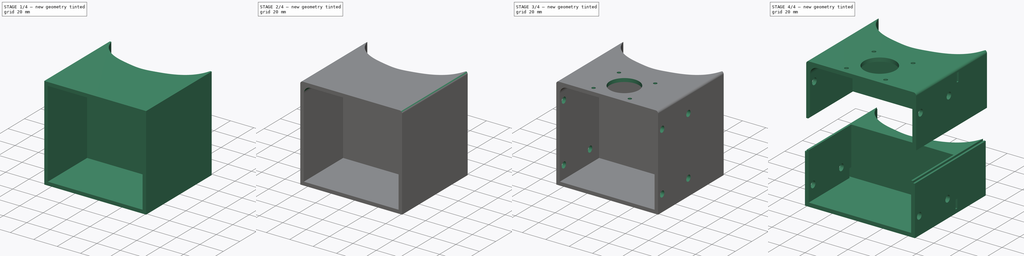
[diagram: build sequence overview — one tinted view per stage of 4, left to right]
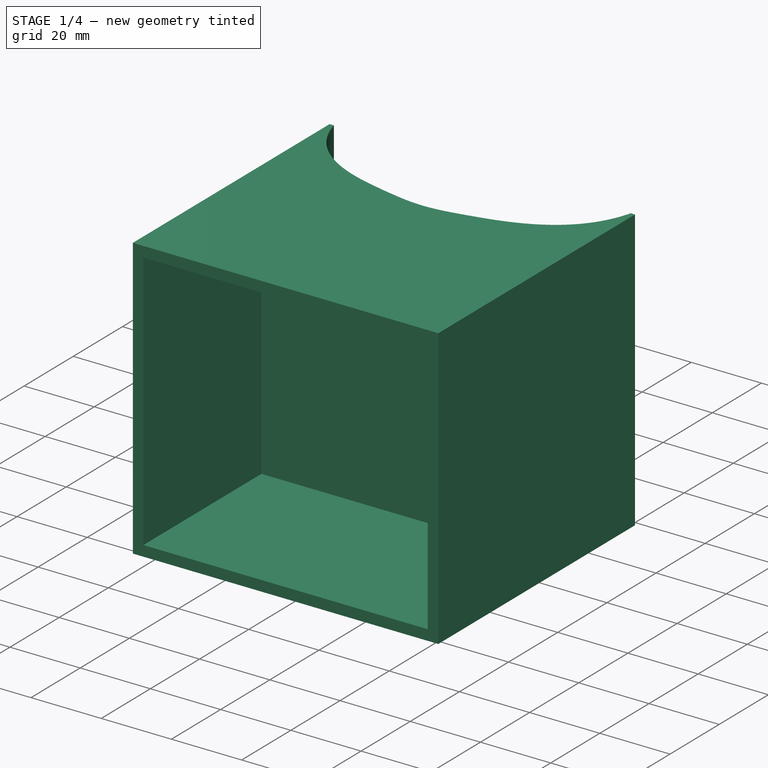
[diagram: stage 1 of 4 — iso view after this stage's code; geometry added in this stage tinted green]
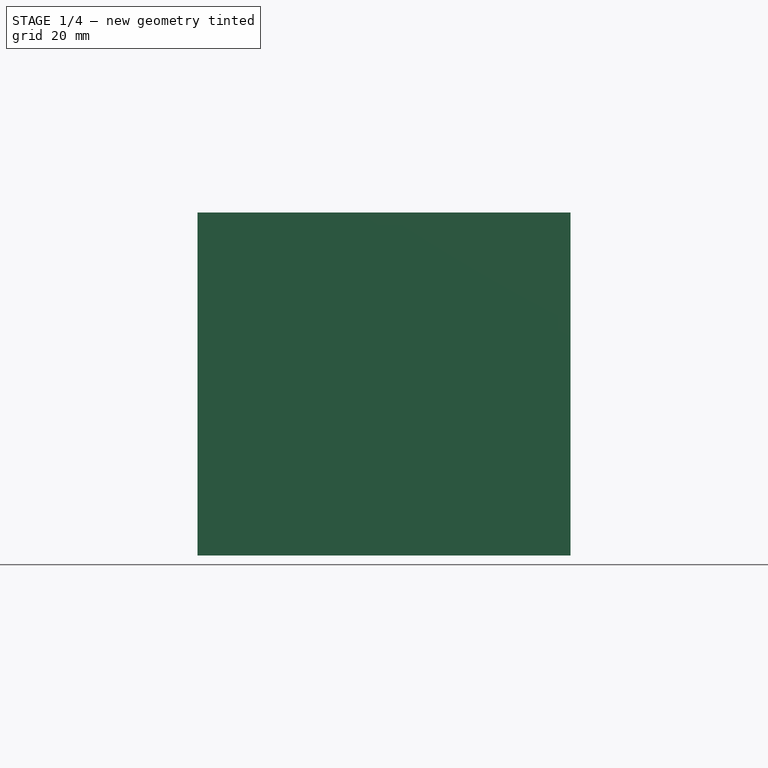
[diagram: stage 1 of 4 — front view after this stage's code; geometry added in this stage tinted green]
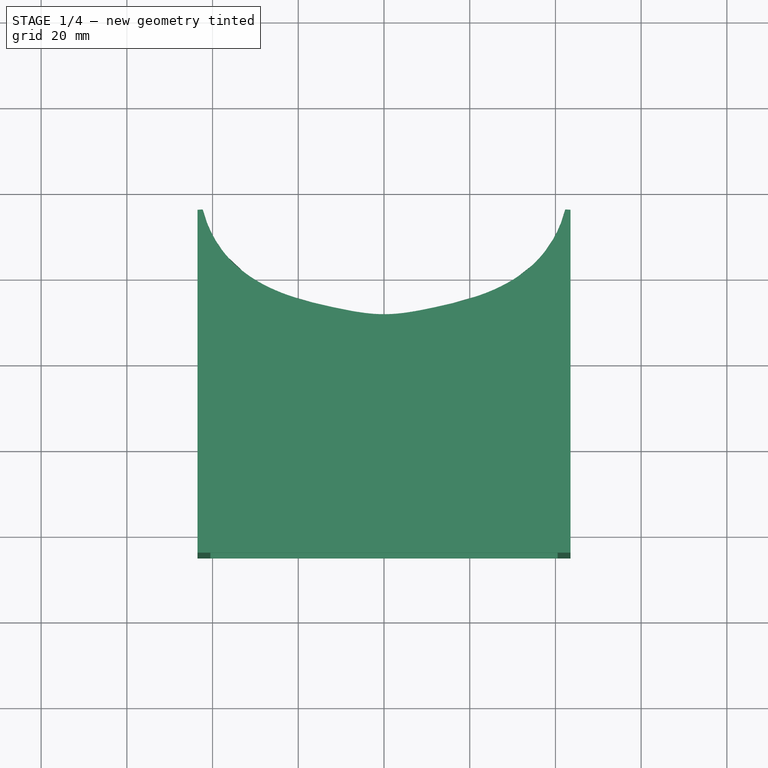
[diagram: stage 1 of 4 — top view after this stage's code; geometry added in this stage tinted green]
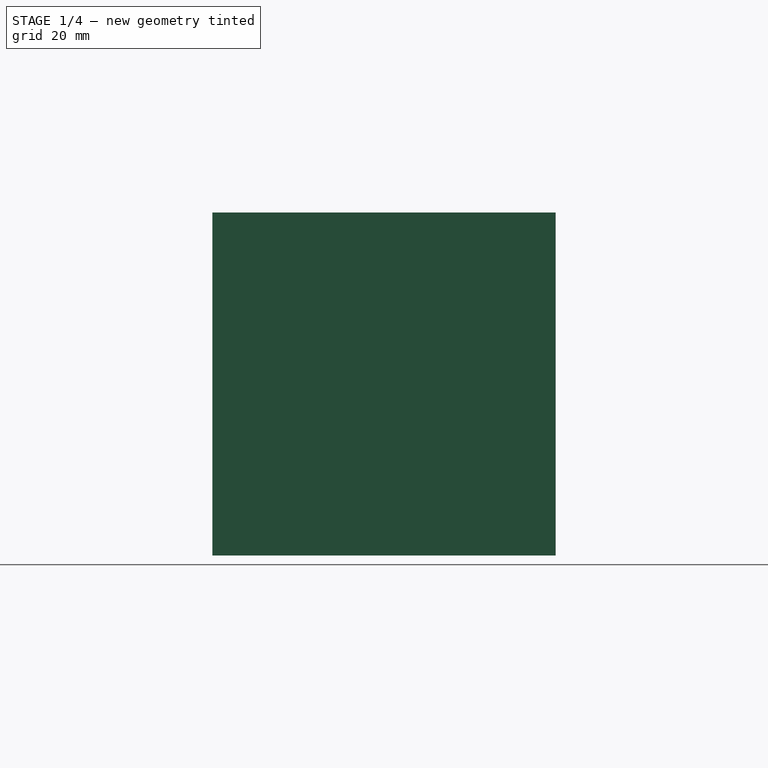
[diagram: stage 1 of 4 — right view after this stage's code; geometry added in this stage tinted green]
FCSTD DOCUMENT  (FreeCAD 0.19R22960 (Git))
Label: asm
License: All rights reserved
LicenseURL: http://en.wikipedia.org/wiki/All_rights_reserved
objects: App::Link×14, PartDesign::CoordinateSystem×7, Sketcher::SketchObject×6, PartDesign::Pocket×4, PartDesign::Fillet×4, Part::FeaturePython×3, App::DocumentObjectGroup×2, PartDesign::Chamfer×2, PartDesign::Pad×1, PartDesign::Body×1, Part::Extrusion×1, App::Part×1
note: 40 computed .brp shape members not serialized (recipe doc carries the construction recipe); baked Part::Feature solids carry a one-line shape summary decoded from their .brp
EXTERNAL_REF file=part/Nema17.FCStd obj=LCS_1
EXTERNAL_REF file=part/Nema17.FCStd obj=Model
EXTERNAL_REF file=led_carrier.FCStd obj=Model
EXTERNAL_REF file=part/sk8.FCStd obj=MH
EXTERNAL_REF file=part/sk8.FCStd obj=Model
EXTERNAL_REF file=part/500mm_Rail.FCStd obj=Center
EXTERNAL_REF file=part/sk8.FCStd obj=Rail
EXTERNAL_REF file=part/500mm_Rail.FCStd obj=Model
EXTERNAL_REF file=part/D19L25.FCStd obj=Center
EXTERNAL_REF file=part/D19L25.FCStd obj=Model
EXTERNAL_REF file=part/jar.FCStd obj=Model
EXTERNAL_REF file=part/pump_plate.FCStd obj=LCS_Origin
EXTERNAL_REF file=part/pump_plate.FCStd obj=Model
EXTERNAL_REF file=part/Board.FCStd obj=Model

FEATURE [PartDesign::CoordinateSystem] LCS_Origin
  AttacherType = Attacher::AttachEngine3D
  MapMode = 2
  Support = -> [X_Axis]
FEATURE [App::DocumentObjectGroup] Constraints
FEATURE [Sketcher::SketchObject] Sketch001
  MapMode = 5
  Support = -> [XY_Plane001]
  sketch-geometry (14):
    g0: LineSegment StartX=43.5 StartY=45 StartZ=0 EndX=43.5 EndY=-45 EndZ=0
    g1: LineSegment StartX=43.5 StartY=-45 StartZ=0 EndX=-43.5 EndY=-45 EndZ=0
    g2: LineSegment StartX=-43.5 StartY=-45 StartZ=0 EndX=-43.5 EndY=45 EndZ=0
    g3-g8: Circle [constr] x6 (B-spline internal-alignment scaffolding for g9; pole/knot coordinates omitted)
    g9: BSplineCurve PolesCount=6 KnotsCount=4 Degree=3 IsPeriodic=0
    g10-g13: GeomPoint [constr] x4 (B-spline internal-alignment scaffolding for g9; pole/knot coordinates omitted)
  constraints (22):
    c: Coincident(g0,g1)
    c: Coincident(g1,g2)
    c: Vertical(g2)
    c: DistanceX(g1,g1) = 87
    c: DistanceY(g2,g2) = 90
    c: Symmetric(g0,g1,g-2)
    c: Symmetric(g0,g0,g-1)
    c: Equal(g2,g0)
    c: Radius(g3) = 4
    c: Equal(g3, g4-g8) x5
    c: InternalAlignment(g3-g8 -> g9) x6
    c: InternalAlignment(g10-g13 -> g9) x4
    c: DistanceY(g7,g0) = 25
    c: Vertical(g4,g2)
    c: Vertical(g7,g0)
    c: DistanceX(g5,g6) = 10
    c: DistanceX(g5,g-1) = 5
    c: Coincident(g9,g2)
    c: Coincident(g9,g0)
    c: DistanceY(g4,g2) = 25
    c: Horizontal(g5,g6)
    c: DistanceY(g5,g4) = 10
FEATURE [PartDesign::Pad] Pad
  AllowMultiFace = false
  Direction = (1,1,1)
  Length = 80
  Length2 = 100
  Profile = -> Sketch001
  Type = 0
FEATURE [PartDesign::Chamfer] Chamfer
  Angle = 45
  Base = -> Pad [Edge1]
  BaseFeature = -> Pad
  ChamferType = 0
  FlipDirection = false
  Size = 10
  Size2 = 1
  SupportTransform = false
FEATURE [PartDesign::Chamfer] Chamfer001
  Angle = 45
  Base = -> Chamfer [Edge15]
  BaseFeature = -> Chamfer
  ChamferType = 0
  FlipDirection = false
  Size = 10
  Size2 = 1
  SupportTransform = false
FEATURE [PartDesign::CoordinateSystem] Nut_Mount
  AttacherType = Attacher::AttachEngine3D
  MapMode = 11
  Placement = pos=(16,9e-16,17) rot=(0,0,1;0rad)
  Support = -> [Pocket001]
FEATURE [PartDesign::CoordinateSystem] LED_Bracket_MH
  AttacherType = Attacher::AttachEngine3D
  MapMode = 11
  Placement = pos=(9e-15,23,-5) rot=(0.707107,0,-0.707107;3.14159rad)
  Support = -> [Pocket001]
FEATURE [App::Link] led_clamp
  AssemblyType = Asm4EE
  AttachedBy = #MH
  AttachedTo = Parent Assembly#LED_Bracket_MH
  AttachmentOffset = pos=(0,0,0) rot=(-1,0,0;3.14159rad)
  LinkPlacement = pos=(-40,-8.17e-14,-11) rot=(0.707107,0.707107,0;3.14159rad)
  LinkedObject = -> <external part/led_clamp.FCStd>#Model
  Placement = pos=(-40,-8.17e-14,-11) rot=(0.707107,0.707107,0;3.14159rad)
  expr: Placement = LED_Bracket_MH.Placement * AttachmentOffset * led_clamp#MH.Placement ^ -1
FEATURE [PartDesign::Fillet] Fillet
  Base = -> Pocket001 [Edge65]
  BaseFeature = -> Pocket001
  Placement = pos=(0,0,0) rot=(0.57735,0.57735,0.57735;2.0944rad)
  Radius = 11
  SupportTransform = false
FEATURE [PartDesign::Fillet] Fillet001
  Base = -> Fillet [Edge22]
  BaseFeature = -> Fillet
  Placement = pos=(0,0,0) rot=(0.57735,0.57735,0.57735;2.0944rad)
  Radius = 11
  SupportTransform = false
FEATURE [PartDesign::Body] Body
  Group = -> [Sketch,Pad,Sketch003,Hole,Sketch004,Pad001,Sketch005,Pocket,Sketch006,Pocket001,Fillet,Fillet001]
  Origin = -> Origin001
  Tip = -> Fillet001
FEATURE [App::Part] Model
  Configuration = 0
  Group = -> [LCS_Origin,Constraints,Variables,Body,MH1,MH2,SCS8UU,SCS8UU001,Nut_Mount,Lead_Screw_Nut,LED_Bracket_MH,led_clamp]
  Origin = -> Origin
  Type = Assembly4 Model
FEATURE [Part::FeaturePython] aCircle  # WARN: FeaturePython — macro-defined, semantics opaque (R4)
FEATURE [Part::FeaturePython] Radius  # WARN: FeaturePython — macro-defined, semantics opaque (R4)
FEATURE [App::AnnotationLabel] MeasureLbl
  BasePosition = (8,-1.65,17)
  LabelText = R = 1.650
  TextPosition = (0,0,0)
FEATURE [App::DocumentObjectGroup] Measures
  Group = -> [aCircle,Radius,MeasureLbl]
---- part part/500mm_Rail.FCStd = doc fcstd_cfe7734ba02d ----
FCSTD DOCUMENT  (FreeCAD 0.19R22960 (Git))
Label: 500mm_Rail
License: All rights reserved
LicenseURL: http://en.wikipedia.org/wiki/All_rights_reserved
objects: Sketcher::SketchObject×1, PartDesign::Pad×1, PartDesign::Body×1, App::DocumentObjectGroup×1, App::FeaturePython×1, PartDesign::CoordinateSystem×1, App::Part×1
note: 5 computed .brp shape members not serialized (recipe doc carries the construction recipe); baked Part::Feature solids carry a one-line shape summary decoded from their .brp

FEATURE [Sketcher::SketchObject] Sketch
  MapMode = 5
  Support = -> [XY_Plane]
  sketch-geometry (1):
    g0: Circle CenterX=0 CenterY=0 CenterZ=0 NormalX=0 NormalY=0 NormalZ=1 AngleXU=0 Radius=4
  constraints (2):
    c: Coincident(g-1,g0)
    c: Radius(g0) = 4
FEATURE [PartDesign::Pad] Pad
  AllowMultiFace = false
  Direction = (1,1,1)
  Length = 250
  Length2 = 100
  Profile = -> Sketch
  Type = 0
FEATURE [PartDesign::Body] Body
  Group = -> [Sketch,Pad]
  Origin = -> Origin
  Placement = pos=(0,0,-53) rot=(0,0,1;0rad)
  Tip = -> Pad
FEATURE [App::DocumentObjectGroup] Constraints
FEATURE [App::FeaturePython] Variables  # WARN: FeaturePython — macro-defined, semantics opaque (R4)
FEATURE [PartDesign::CoordinateSystem] Center
  AttacherType = Attacher::AttachEngine3D
FEATURE [App::Part] Model
  Configuration = 0
  Group = -> [Constraints,Variables,Body,Center]
  Origin = -> Origin001
  Type = Assembly4 Model
---- part part/Nema17.FCStd = doc fcstd_29ae6b88d627 ----
FCSTD DOCUMENT  (FreeCAD 0.19R22960 (Git))
Label: Nema17
License: All rights reserved
LicenseURL: http://en.wikipedia.org/wiki/All_rights_reserved
objects: App::DocumentObjectGroup×2, PartDesign::CoordinateSystem×2, Part::Feature×2, App::FeaturePython×1, Part::Compound2×1, App::Part×1
note: 4 computed .brp shape members not serialized (recipe doc carries the construction recipe); baked Part::Feature solids carry a one-line shape summary decoded from their .brp

FEATURE [App::DocumentObjectGroup] Parts
FEATURE [PartDesign::CoordinateSystem] LCS_Origin
  AttacherType = Attacher::AttachEngine3D
  MapMode = 2
  Support = -> [X_Axis]
FEATURE [App::DocumentObjectGroup] Constraints
FEATURE [App::FeaturePython] Variables  # WARN: FeaturePython — macro-defined, semantics opaque (R4)
FEATURE [Part::Feature] Solid
  shape: bbox 4.991 x 4.991 x 58.17 mm, 8 faces (baked)
FEATURE [Part::Feature] Solid001
  shape: bbox 45.91 x 45.91 x 36.32 mm, 325 faces (baked)
FEATURE [Part::Compound2] Compound  label="6627T66"
  Links = -> [Solid,Solid001]
FEATURE [PartDesign::CoordinateSystem] LCS_1
  AttacherType = Attacher::AttachEngine3D
  MapMode = 5
  Support = -> [Compound]
FEATURE [App::Part] Model
  Configuration = 0
  Group = -> [LCS_Origin,Constraints,Variables,LCS_1,Solid001,Solid,Compound]
  Origin = -> Origin
  Type = Assembly4 Model
---- part part/jar.FCStd = doc fcstd_4f1c2c39d192 ----
FCSTD DOCUMENT  (FreeCAD 0.19R22960 (Git))
Label: jar
License: All rights reserved
LicenseURL: http://en.wikipedia.org/wiki/All_rights_reserved
objects: App::DocumentObjectGroup×2, Sketcher::SketchObject×2, PartDesign::Fillet×2, PartDesign::CoordinateSystem×1, App::FeaturePython×1, PartDesign::Pad×1, PartDesign::Pocket×1, PartDesign::Body×1, App::Part×1
note: 12 computed .brp shape members not serialized (recipe doc carries the construction recipe); baked Part::Feature solids carry a one-line shape summary decoded from their .brp

FEATURE [App::DocumentObjectGroup] Parts
FEATURE [PartDesign::CoordinateSystem] LCS_Origin
  AttacherType = Attacher::AttachEngine3D
  MapMode = 2
  Support = -> [X_Axis]
FEATURE [App::DocumentObjectGroup] Constraints
FEATURE [App::FeaturePython] Variables  # WARN: FeaturePython — macro-defined, semantics opaque (R4)
FEATURE [Sketcher::SketchObject] Sketch
  MapMode = 5
  Support = -> [XY_Plane001]
  sketch-geometry (1):
    g0: Circle CenterX=0 CenterY=0 CenterZ=0 NormalX=0 NormalY=0 NormalZ=1 AngleXU=0 Radius=45
  constraints (2):
    c: Coincident(g0,g-1)
    c: Diameter(g0) = 90
FEATURE [PartDesign::Pad] Pad
  Direction = (1,1,1)
  Length = 160
  Length2 = 100
  Profile = -> Sketch
  Type = 0
FEATURE [PartDesign::Fillet] Fillet
  Base = -> Pad [Edge3]
  BaseFeature = -> Pad
  Radius = 3
  SupportTransform = false
FEATURE [Sketcher::SketchObject] Sketch001
  MapMode = 5
  Placement = pos=(0,0,160) rot=(0,0,1;0rad)
  Support = -> [Fillet]
  sketch-geometry (1):
    g0: Circle CenterX=0 CenterY=0 CenterZ=0 NormalX=0 NormalY=0 NormalZ=1 AngleXU=0 Radius=40
  constraints (2):
    c: Coincident(g0,g-1)
    c: Diameter(g0) = 80
FEATURE [PartDesign::Pocket] Pocket
  BaseFeature = -> Fillet
  Length = 150
  Length2 = 100
  Profile = -> Sketch001
  Type = 0
FEATURE [PartDesign::Fillet] Fillet001
  Base = -> Pocket [Edge6]
  BaseFeature = -> Pocket
  Radius = 1
  SupportTransform = false
FEATURE [PartDesign::Body] Body
  Group = -> [Sketch,Pad,Fillet,Sketch001,Pocket,Fillet001]
  Origin = -> Origin001
  Tip = -> Fillet001
FEATURE [App::Part] Model
  Configuration = 0
  Group = -> [LCS_Origin,Constraints,Variables,Body]
  Origin = -> Origin
  Type = Assembly4 Model
---- part part/pump_plate.FCStd = doc fcstd_cdf00c49fab9 ----
FCSTD DOCUMENT  (FreeCAD 0.19R22960 (Git))
Label: pump_plate
License: All rights reserved
LicenseURL: http://en.wikipedia.org/wiki/All_rights_reserved
objects: PartDesign::Fillet×8, PartDesign::CoordinateSystem×5, App::Link×4, App::DocumentObjectGroup×2, Sketcher::SketchObject×2, App::FeaturePython×1, PartDesign::Pad×1, PartDesign::Pocket×1, PartDesign::Body×1, App::Part×1
note: 28 computed .brp shape members not serialized (recipe doc carries the construction recipe); baked Part::Feature solids carry a one-line shape summary decoded from their .brp
EXTERNAL_REF file=12V_Pump.FCStd obj=LCS_Origin
EXTERNAL_REF file=12V_Pump.FCStd obj=Model
EXTERNAL_REF file=pump_clamp.FCStd obj=MH
EXTERNAL_REF file=pump_clamp.FCStd obj=Model

FEATURE [App::DocumentObjectGroup] Parts
FEATURE [PartDesign::CoordinateSystem] LCS_Origin
  AttacherType = Attacher::AttachEngine3D
  MapMode = 2
  Support = -> [X_Axis]
FEATURE [App::DocumentObjectGroup] Constraints
FEATURE [App::FeaturePython] Variables  # WARN: FeaturePython — macro-defined, semantics opaque (R4)
FEATURE [App::Link] _2V_Pump
  AssemblyType = Asm4EE
  AttachedBy = #LCS_Origin
  AttachedTo = Parent Assembly#Pump1_Mount
  AttachmentOffset = pos=(0,0,0) rot=(1,0,0;3.14159rad)
  LinkPlacement = pos=(-26.5,20,0) rot=(0.707107,-0.707107,0;3.14159rad)
  LinkedObject = -> <external 12V_Pump.FCStd>#Model
  Placement = pos=(-26.5,20,0) rot=(0.707107,-0.707107,0;3.14159rad)
  expr: Placement = Pump1_Mount.Placement * AttachmentOffset * _2V_Pump#LCS_Origin.Placement ^ -1
FEATURE [App::Link] _2V_Pump001
  AssemblyType = Asm4EE
  AttachedBy = #LCS_Origin
  AttachedTo = Parent Assembly#Pump2_Mount
  AttachmentOffset = pos=(0,0,0) rot=(1,0,0;3.14159rad)
  LinkPlacement = pos=(26.5,20,0) rot=(0.707107,-0.707107,0;3.14159rad)
  LinkedObject = -> <external 12V_Pump.FCStd>#Model
  Placement = pos=(26.5,20,0) rot=(0.707107,-0.707107,0;3.14159rad)
  expr: Placement = Pump2_Mount.Placement * AttachmentOffset * _2V_Pump#LCS_Origin.Placement ^ -1
FEATURE [Sketcher::SketchObject] Sketch001
  MapMode = 5
  Support = -> [XY_Plane001]
  sketch-geometry (22):
    g0: LineSegment StartX=-8.5 StartY=3 StartZ=0 EndX=-8.5 EndY=20 EndZ=0
    g1: LineSegment StartX=-44.5 StartY=20 StartZ=0 EndX=-39.5 EndY=20 EndZ=0
    g2: LineSegment StartX=-8.5 StartY=20 StartZ=0 EndX=-13.5 EndY=20 EndZ=0
    g3: ArcOfCircle CenterX=-26.5 CenterY=20 CenterZ=0 NormalX=0 NormalY=0 NormalZ=1 AngleXU=0 Radius=13 StartAngle=3.14159 EndAngle=6.28319
    g4: LineSegment StartX=8.5 StartY=3 StartZ=0 EndX=8.5 EndY=20 EndZ=0
    g5: LineSegment StartX=8.5 StartY=20 StartZ=0 EndX=13.5 EndY=20 EndZ=0
    g6: LineSegment StartX=44.5 StartY=20 StartZ=0 EndX=39.5 EndY=20 EndZ=0
    g7: ArcOfCircle CenterX=26.5 CenterY=20 CenterZ=0 NormalX=0 NormalY=0 NormalZ=1 AngleXU=0 Radius=13 StartAngle=3.14159 EndAngle=6.28319
    g8: LineSegment StartX=-8.5 StartY=3 StartZ=0 EndX=8.5 EndY=3 EndZ=0
    g9: LineSegment StartX=-43.5 StartY=0 StartZ=0 EndX=43.5 EndY=0 EndZ=0
    g10: LineSegment StartX=-44.5 StartY=3 StartZ=0 EndX=-47.5 EndY=3 EndZ=0
    g11: LineSegment StartX=-47.5 StartY=3 StartZ=0 EndX=-47.5 EndY=-3 EndZ=0
    g12: LineSegment StartX=-47.5 StartY=-3 StartZ=0 EndX=-44.5 EndY=-3 EndZ=0
    g13: LineSegment StartX=-44.5 StartY=-3 StartZ=0 EndX=-44.5 EndY=0 EndZ=0
    g14: LineSegment StartX=-44.5 StartY=3 StartZ=0 EndX=-44.5 EndY=20 EndZ=0
    g15: LineSegment StartX=43.5 StartY=0 StartZ=0 EndX=44.5 EndY=0 EndZ=0
    g16: LineSegment StartX=44.5 StartY=0 StartZ=0 EndX=44.5 EndY=-3 EndZ=0
    g17: LineSegment StartX=44.5 StartY=-3 StartZ=0 EndX=47.5 EndY=-3 EndZ=0
    g18: LineSegment StartX=47.5 StartY=-3 StartZ=0 EndX=47.5 EndY=3 EndZ=0
    g19: LineSegment StartX=47.5 StartY=3 StartZ=0 EndX=44.5 EndY=3 EndZ=0
    g20: LineSegment StartX=44.5 StartY=3 StartZ=0 EndX=44.5 EndY=20 EndZ=0
    g21: LineSegment StartX=-44.5 StartY=0 StartZ=0 EndX=-43.5 EndY=0 EndZ=0
  constraints (68):
    c: Vertical(g0)
    c: DistanceX(g9,g0) = 35
    c: DistanceY(g9,g1) = 20
    c: Horizontal(g1)
    c: Coincident(g2,g0)
    c: Horizontal(g2)
    c: Equal(g2,g1)
    c: DistanceX(g2,g2) = 5
    c: Coincident(g3,g1)
    c: Coincident(g3,g2)
    c: Horizontal(g3,g1)
    c: Vertical(g4)
    c: DistanceX(g4,g9) = 35
    c: Coincident(g5,g4)
    c: Horizontal(g5)
    c: Horizontal(g6)
    c: Equal(g6,g5)
    c: Equal(g2,g6) = 5
    c: Coincident(g7,g5)
    c: Coincident(g7,g6)
    c: Horizontal(g7,g5)
    c: Coincident(g8,g0)
    c: Coincident(g8,g4)
    c: DistanceY(g-1,g4) = 3
    c: Horizontal(g2,g1)
    c: Horizontal(g9,g-1)
    c: Horizontal(g9,g9)
    c: Symmetric(g0,g4,g-2)
    c: Equal(g4,g0)
    c: DistanceX(g8,g8) = 17
    c: Horizontal(g10)
    c: Coincident(g11,g10)
    c: Vertical(g11)
    c: Coincident(g12,g11)
    c: Horizontal(g12)
    c: Coincident(g13,g12)
    c: PointOnObject(g13,g-1)
    c: Vertical(g13)
    c: Coincident(g14,g10)
    c: Coincident(g14,g1)
    c: Vertical(g14)
    c: Coincident(g15,g9)
    c: PointOnObject(g15,g-1)
    c: Coincident(g16,g15)
    c: Vertical(g16)
    c: Coincident(g17,g16)
    c: Horizontal(g17)
    c: Coincident(g18,g17)
    c: Vertical(g18)
    c: Coincident(g19,g18)
    c: Horizontal(g19)
    c: Coincident(g20,g19)
    c: Coincident(g20,g6)
    c: Vertical(g20)
    c: Equal(g12,g17)
    c: Equal(g11,g18)
    c: Coincident(g21,g13)
    c: Coincident(g21,g9)
    c: Equal(g21,g15)
    c: DistanceX(g21,g21) = 1
    c: DistanceX(g12,g12) = 3
    c: DistanceY(g11,g11) = 6
    c: Equal(g20,g14)
    c: Horizontal(g5,g6)
    c: DistanceY(g14,g14) = 17
    c: Equal(g1,g2)
    c: Diameter(g3) = 26
    c: Equal(g7,g3)
FEATURE [PartDesign::Pad] Pad
  Direction = (1,1,1)
  Length = 10
  Length2 = 100
  Profile = -> Sketch001
  Type = 0
FEATURE [PartDesign::CoordinateSystem] Pump1_Mount
  AttacherType = Attacher::AttachEngine3D
  MapMode = 11
  Placement = pos=(-26.5,20,0) rot=(0,0,-1;1.5708rad)
  Support = -> [Pad]
FEATURE [PartDesign::CoordinateSystem] Pump2_Mount
  AttacherType = Attacher::AttachEngine3D
  MapMode = 11
  Placement = pos=(26.5,20,0) rot=(0,0,-1;1.5708rad)
  Support = -> [Pad]
FEATURE [Sketcher::SketchObject] Sketch
  ExternalGeometry = -> [Pad]
  MapMode = 5
  Placement = pos=(0,20,0) rot=(0,0.707107,0.707107;3.14159rad)
  Support = -> [Pad]
  sketch-geometry (21):
    g0: Circle CenterX=-11 CenterY=5 CenterZ=0 NormalX=0 NormalY=0 NormalZ=1 AngleXU=0 Radius=1
    g1: Circle CenterX=11 CenterY=5 CenterZ=0 NormalX=0 NormalY=0 NormalZ=1 AngleXU=0 Radius=1
    g2: Circle CenterX=42 CenterY=5 CenterZ=0 NormalX=0 NormalY=0 NormalZ=1 AngleXU=0 Radius=1
    g3: Circle CenterX=-42 CenterY=5 CenterZ=0 NormalX=0 NormalY=0 NormalZ=1 AngleXU=0 Radius=1
    g4: LineSegment [constr] StartX=-42 StartY=5 StartZ=0 EndX=-39.5 EndY=5 EndZ=0
    g5: LineSegment [constr] StartX=-42 StartY=5 StartZ=0 EndX=-42 EndY=5 EndZ=0
    g6: LineSegment [constr] StartX=-44.5 StartY=5 StartZ=0 EndX=-42 EndY=5 EndZ=0
    g7: LineSegment [constr] StartX=-11 StartY=5 StartZ=0 EndX=-13.5 EndY=5 EndZ=0
    g8: LineSegment [constr] StartX=-11 StartY=5 StartZ=0 EndX=-8.5 EndY=5 EndZ=0
    g9: LineSegment [constr] StartX=11 StartY=5 StartZ=0 EndX=8.5 EndY=5 EndZ=0
    g10: LineSegment [constr] StartX=11 StartY=5 StartZ=0 EndX=13.5 EndY=5 EndZ=0
    g11: LineSegment [constr] StartX=42 StartY=5 StartZ=0 EndX=39.5 EndY=5 EndZ=0
    g12: LineSegment [constr] StartX=42 StartY=5 StartZ=0 EndX=44.5 EndY=5 EndZ=0
    g13: LineSegment [constr] StartX=11 StartY=5 StartZ=0 EndX=11 EndY=10 EndZ=0
    g14: LineSegment [constr] StartX=11 StartY=5 StartZ=0 EndX=11 EndY=0 EndZ=0
    g15: LineSegment [constr] StartX=42 StartY=5 StartZ=0 EndX=42 EndY=0 EndZ=0
    g16: LineSegment [constr] StartX=42 StartY=5 StartZ=0 EndX=42 EndY=10 EndZ=0
    g17: LineSegment [constr] StartX=-11 StartY=5 StartZ=0 EndX=-11 EndY=10 EndZ=0
    g18: LineSegment [constr] StartX=-11 StartY=5 StartZ=0 EndX=-11 EndY=0 EndZ=0
    g19: LineSegment [constr] StartX=-42 StartY=5 StartZ=0 EndX=-42 EndY=0 EndZ=0
    g20: LineSegment [constr] StartX=-42 StartY=5 StartZ=0 EndX=-42 EndY=10 EndZ=0
  constraints (63):
    c: Coincident(g4,g3)
    c: PointOnObject(g4,g-5)
    c: Horizontal(g4)
    c: PointOnObject(g5,g4)
    c: Coincident(g5,g3)
    c: Vertical(g5)
    c: PointOnObject(g6,g-6)
    c: Coincident(g6,g3)
    c: Horizontal(g6)
    c: Coincident(g7,g0)
    c: PointOnObject(g7,g-4)
    c: Horizontal(g7)
    c: Coincident(g8,g0)
    c: Horizontal(g8)
    c: Coincident(g9,g1)
    c: PointOnObject(g9,g-7)
    c: Horizontal(g9)
    c: Coincident(g10,g1)
    c: Horizontal(g10)
    c: Coincident(g11,g2)
    c: PointOnObject(g11,g-9)
    c: Coincident(g12,g2)
    c: Horizontal(g12)
    c: Horizontal(g11)
    c: Coincident(g13,g1)
    c: Vertical(g13)
    c: Coincident(g14,g1)
    c: PointOnObject(g14,g-14)
    c: Vertical(g14)
    c: Coincident(g15,g2)
    c: PointOnObject(g15,g-12)
    c: Vertical(g15)
    c: Coincident(g16,g2)
    c: Vertical(g16)
    c: Coincident(g17,g0)
    c: PointOnObject(g17,g-15)
    c: Vertical(g17)
    c: Coincident(g18,g0)
    c: Coincident(g19,g3)
    c: PointOnObject(g19,g-18)
    c: Coincident(g20,g3)
    c: Vertical(g20)
    c: Vertical(g19)
    c: Vertical(g18)
    c: Equal(g19,g20)
    c: Equal(g20,g17)
    c: Equal(g17,g18)
    c: Equal(g18,g14)
    c: Equal(g14,g13)
    c: Equal(g13,g16)
    c: Equal(g16,g15)
    c: Horizontal(g20,g-17)
    c: Equal(g4,g6)
    c: Equal(g6,g8)
    c: Equal(g8,g7)
    c: Equal(g7,g9)
    c: Equal(g9,g10)
    c: Equal(g10,g11)
    c: Equal(g11,g12)
    c: Equal(g3,g0)
    c: Equal(g0,g1)
    c: Equal(g1,g2)
    c: Diameter(g3) = 2
FEATURE [PartDesign::Pocket] Pocket
  BaseFeature = -> Pad
  Length = 15
  Length2 = 100
  Profile = -> Sketch
  Type = 0
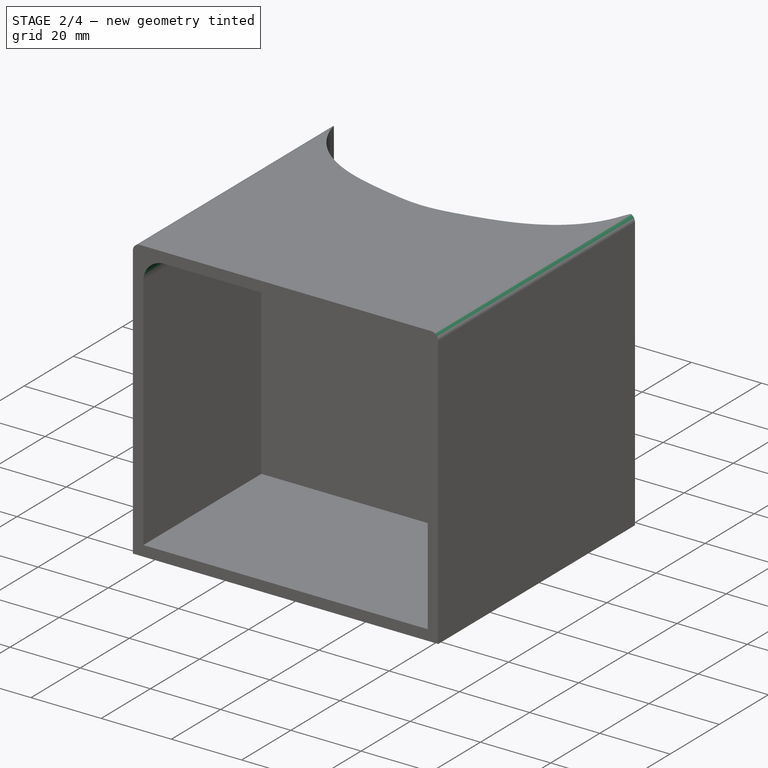
[diagram: stage 2 of 4 — iso view after this stage's code; geometry added in this stage tinted green]
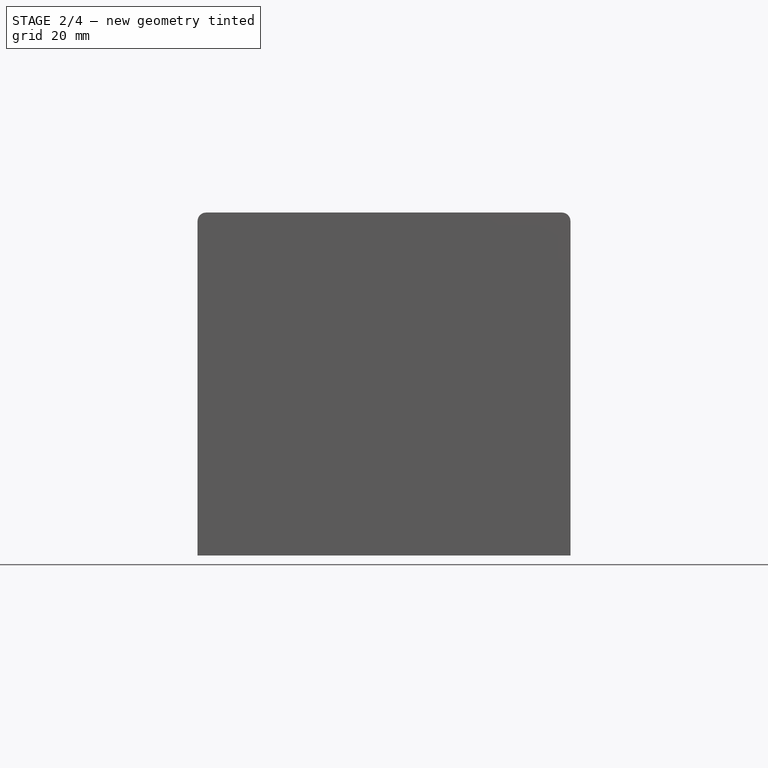
[diagram: stage 2 of 4 — front view after this stage's code; geometry added in this stage tinted green]
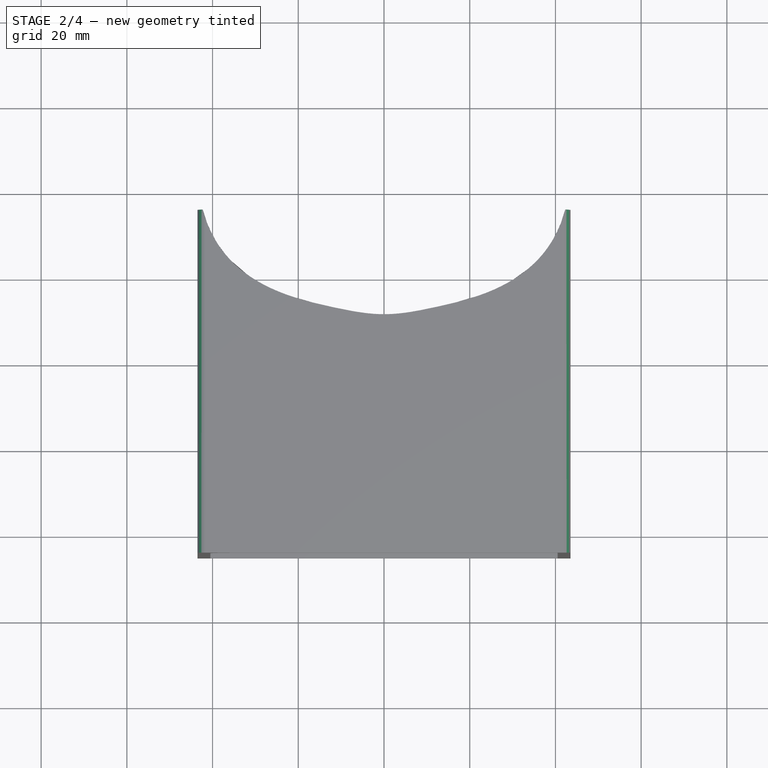
[diagram: stage 2 of 4 — top view after this stage's code; geometry added in this stage tinted green]
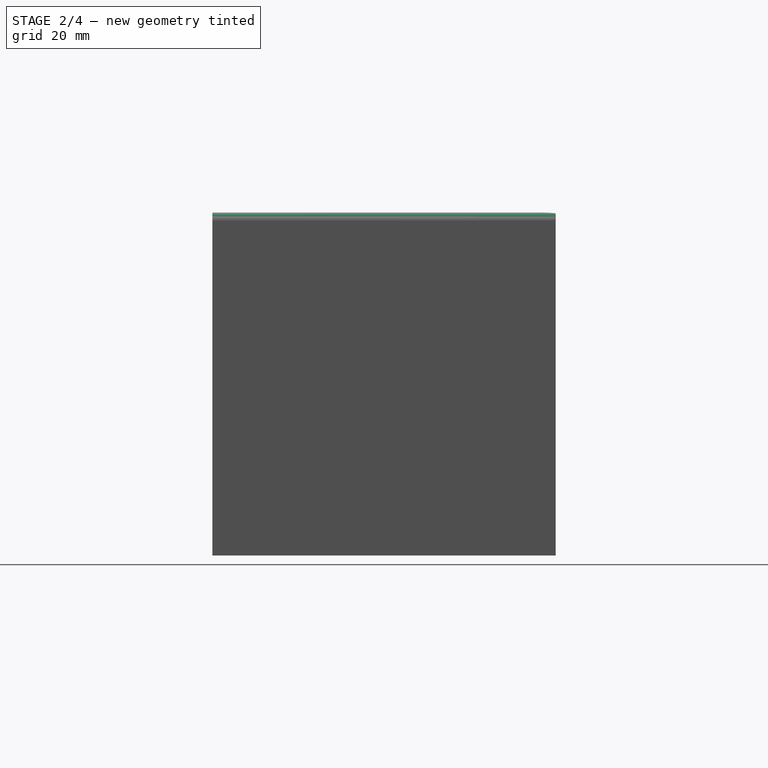
[diagram: stage 2 of 4 — right view after this stage's code; geometry added in this stage tinted green]
FEATURE [PartDesign::CoordinateSystem] MH1
  AttacherType = Attacher::AttachEngine3D
  MapMode = 11
  Placement = pos=(42,20,5) rot=(0.57735,0.57735,0.57735;4.18879rad)
  Support = -> [Pocket]
FEATURE [PartDesign::CoordinateSystem] MH2
  AttacherType = Attacher::AttachEngine3D
  MapMode = 11
  Placement = pos=(-11,20,5) rot=(0.57735,0.57735,0.57735;4.18879rad)
  Support = -> [Pocket]
FEATURE [App::Link] pump_clamp
  AssemblyType = Asm4EE
  AttachedBy = #MH
  AttachedTo = Parent Assembly#MH1
  AttachmentOffset = pos=(0,0,0) rot=(-1,0,0;3.14159rad)
  LinkPlacement = pos=(8.5,36,8e-15) rot=(0,0,1;3.14159rad)
  LinkedObject = -> <external pump_clamp.FCStd>#Model
  Placement = pos=(8.5,36,8e-15) rot=(0,0,1;3.14159rad)
  expr: Placement = MH1.Placement * AttachmentOffset * pump_clamp#MH.Placement ^ -1
FEATURE [App::Link] pump_clamp001
  AssemblyType = Asm4EE
  AttachedBy = #MH
  AttachedTo = Parent Assembly#MH2
  AttachmentOffset = pos=(0,0,0) rot=(1,0,0;3.14159rad)
  LinkPlacement = pos=(-44.5,36,8e-15) rot=(0,0,-1;3.14159rad)
  LinkedObject = -> <external pump_clamp.FCStd>#Model
  Placement = pos=(-44.5,36,8e-15) rot=(0,0,-1;3.14159rad)
  expr: Placement = MH2.Placement * AttachmentOffset * pump_clamp#MH.Placement ^ -1
FEATURE [PartDesign::Fillet] Fillet
  Base = -> Pocket [Edge14]
  BaseFeature = -> Pocket
  Radius = 1
  SupportTransform = false
FEATURE [PartDesign::Fillet] Fillet001
  Base = -> Fillet [Edge74]
  BaseFeature = -> Fillet
  Radius = 1
  SupportTransform = false
FEATURE [PartDesign::Fillet] Fillet002
  Base = -> Fillet001 [Edge40]
  BaseFeature = -> Fillet001
  Radius = 1
  SupportTransform = false
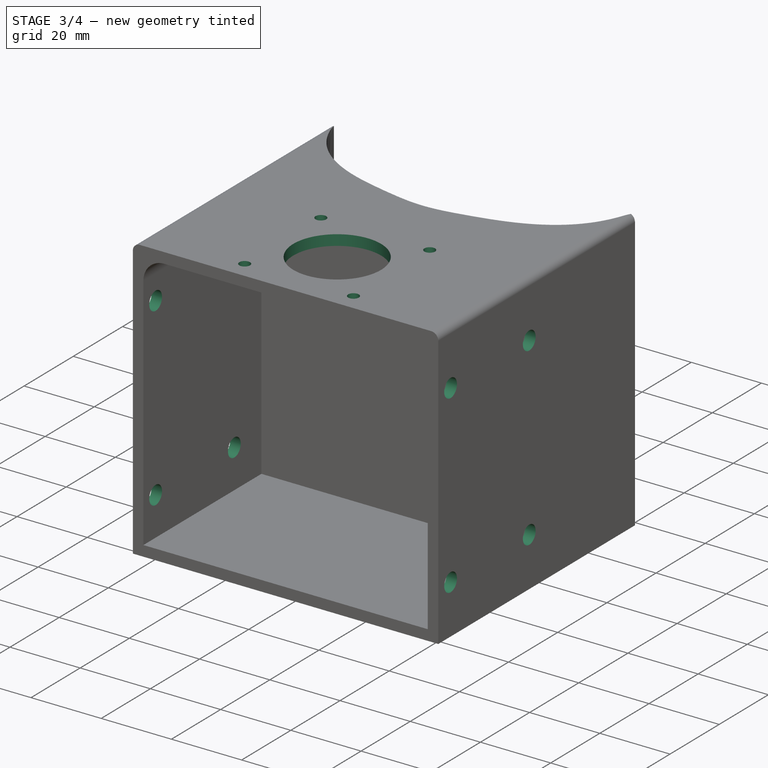
[diagram: stage 3 of 4 — iso view after this stage's code; geometry added in this stage tinted green]
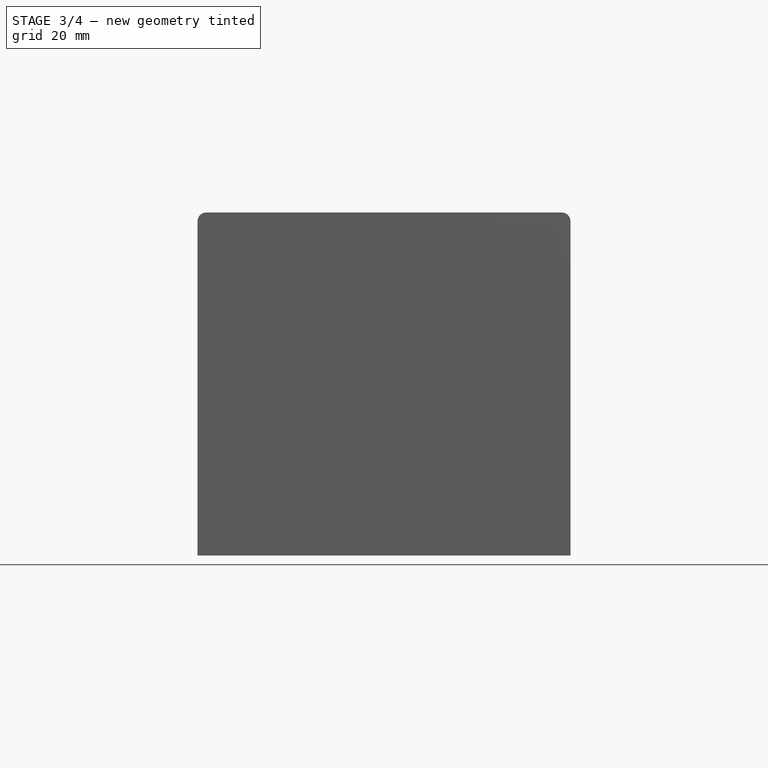
[diagram: stage 3 of 4 — front view after this stage's code; geometry added in this stage tinted green]
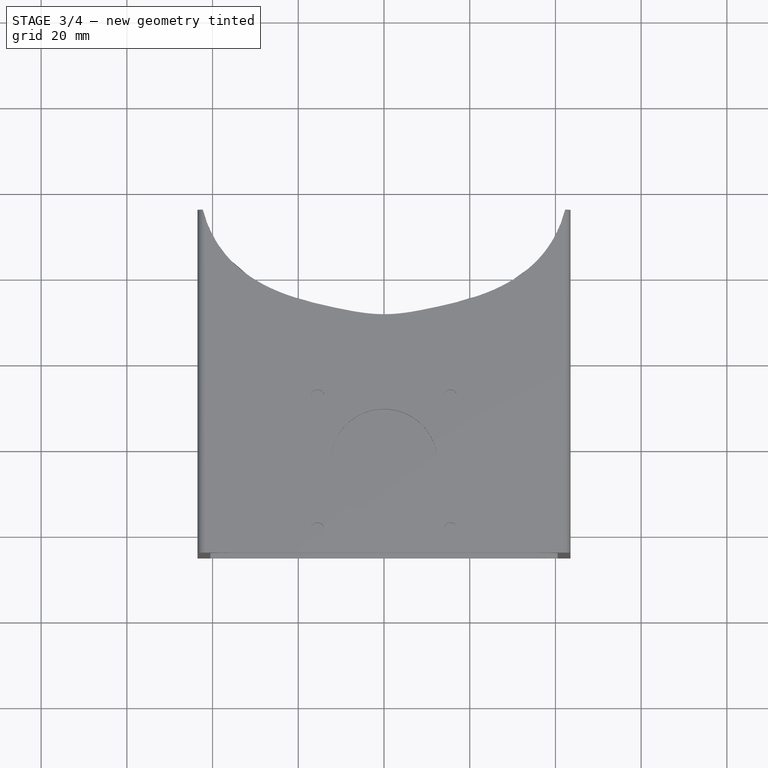
[diagram: stage 3 of 4 — top view after this stage's code; geometry added in this stage tinted green]
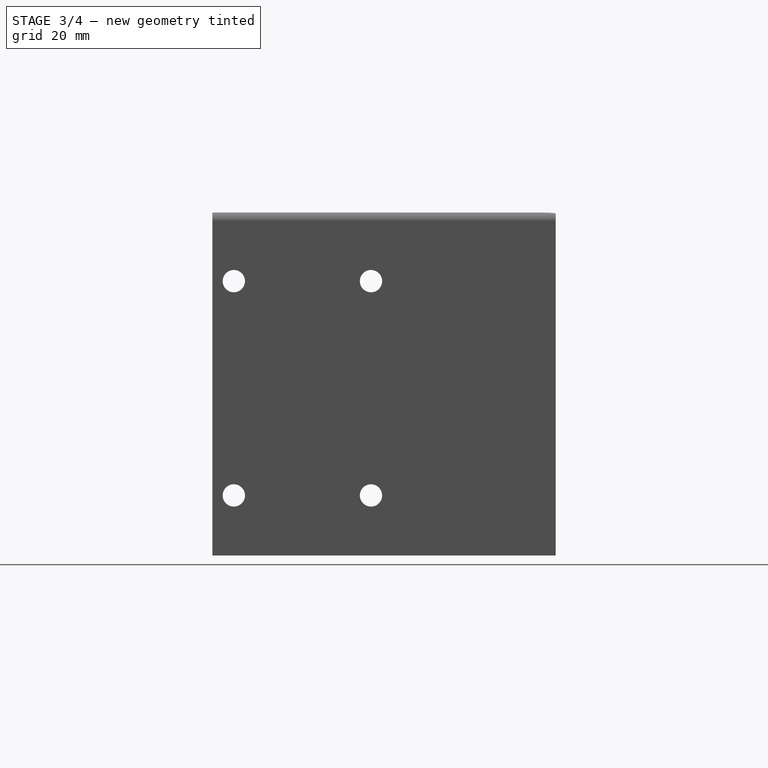
[diagram: stage 3 of 4 — right view after this stage's code; geometry added in this stage tinted green]
FEATURE [Sketcher::SketchObject] Sketch
  ExternalGeometry = -> [Chamfer001]
  MapMode = 5
  Placement = pos=(0,-45,0) rot=(1,0,0;1.5708rad)
  Support = -> [Chamfer001]
  sketch-geometry (4):
    g0: LineSegment StartX=-40.5 StartY=3 StartZ=0 EndX=40.5 EndY=3 EndZ=0
    g1: LineSegment StartX=40.5 StartY=3 StartZ=0 EndX=40.5 EndY=77 EndZ=0
    g2: LineSegment StartX=40.5 StartY=77 StartZ=0 EndX=-40.5 EndY=77 EndZ=0
    g3: LineSegment StartX=-40.5 StartY=77 StartZ=0 EndX=-40.5 EndY=3 EndZ=0
  constraints (12):
    c: Coincident(g0,g1)
    c: Coincident(g1,g2)
    c: Coincident(g2,g3)
    c: Coincident(g3,g0)
    c: Horizontal(g0)
    c: Horizontal(g2)
    c: Vertical(g1)
    c: Vertical(g3)
    c: DistanceY(g1,g-5) = 3
    c: DistanceX(g1,g-5) = 3
    c: DistanceY(g-6,g0) = 3
    c: DistanceX(g-6,g0) = 3
FEATURE [PartDesign::Pocket] Pocket
  AllowMultiFace = false
  BaseFeature = -> Chamfer001
  Length = 48
  Length2 = 100
  Profile = -> Sketch
  Type = 0
FEATURE [PartDesign::Fillet] Fillet
  Base = -> Pocket [Edge15]
  BaseFeature = -> Pocket
  Radius = 2
  SupportTransform = false
FEATURE [PartDesign::Fillet] Fillet001
  Base = -> Fillet [Edge31]
  BaseFeature = -> Fillet
  Radius = 6
  SupportTransform = false
FEATURE [PartDesign::Fillet] Fillet002
  Base = -> Fillet001 [Edge24]
  BaseFeature = -> Fillet001
  Radius = 2
  SupportTransform = false
FEATURE [PartDesign::Fillet] Fillet003
  Base = -> Fillet002 [Edge29]
  BaseFeature = -> Fillet002
  Radius = 6
  SupportTransform = false
FEATURE [Sketcher::SketchObject] Sketch002
  ExternalGeometry = -> [Fillet003]
  MapMode = 5
  Placement = pos=(0,0,80) rot=(0,0,1;0rad)
  Support = -> [Fillet003]
  sketch-geometry (10):
    g0: LineSegment [constr] StartX=0 StartY=3 StartZ=0 EndX=0 EndY=-24 EndZ=0
    g1: Circle CenterX=0 CenterY=-24 CenterZ=0 NormalX=0 NormalY=0 NormalZ=1 AngleXU=0 Radius=12.5
    g2: Circle CenterX=15.5 CenterY=-8.5 CenterZ=0 NormalX=0 NormalY=0 NormalZ=1 AngleXU=0 Radius=1.525
    g3: Circle CenterX=15.5 CenterY=-39.5 CenterZ=0 NormalX=0 NormalY=0 NormalZ=1 AngleXU=0 Radius=1.525
    g4: Circle CenterX=-15.5 CenterY=-39.5 CenterZ=0 NormalX=0 NormalY=0 NormalZ=1 AngleXU=0 Radius=1.525
    g5: Circle CenterX=-15.5 CenterY=-8.5 CenterZ=0 NormalX=0 NormalY=0 NormalZ=1 AngleXU=0 Radius=1.525
    g6: LineSegment [constr] StartX=-15.5 StartY=-8.5 StartZ=0 EndX=0 EndY=-8.5 EndZ=0
    g7: LineSegment [constr] StartX=15.5 StartY=-8.5 StartZ=0 EndX=0 EndY=-8.5 EndZ=0
    g8: LineSegment [constr] StartX=15.5 StartY=-8.5 StartZ=0 EndX=15.5 EndY=-24 EndZ=0
    g9: LineSegment [constr] StartX=15.5 StartY=-39.5 StartZ=0 EndX=15.5 EndY=-24 EndZ=0
  constraints (28):
    c: PointOnObject(g0,g-3)
    c: Vertical(g0)
    c: Coincident(g1,g0)
    c: Radius(g1) = 12.5
    c: Vertical(g0,g-1)
    c: Equal(g5,g4)
    c: Equal(g4,g3)
    c: Equal(g3,g2)
    c: Coincident(g6,g5)
    c: PointOnObject(g6,g0)
    c: Coincident(g7,g2)
    c: Horizontal(g7)
    c: Horizontal(g6)
    c: Equal(g6,g7)
    c: Coincident(g7,g6)
    c: DistanceX(g5,g2) = 31
    c: DistanceY(g3,g2) = 31
    c: Horizontal(g3,g4)
    c: Vertical(g5,g4)
    c: Radius(g4) = 1.525
    c: Coincident(g8,g2)
    c: Coincident(g9,g3)
    c: Coincident(g9,g8)
    c: Vertical(g9)
    c: Horizontal(g8,g1)
    c: Equal(g8,g9)
    c: Vertical(g8)
    c: DistanceY(g-4,g1) = 21
FEATURE [PartDesign::Pocket] Pocket001
  BaseFeature = -> Fillet003
  Length = 5
  Length2 = 100
  Profile = -> Sketch002
  Type = 0
FEATURE [App::Link] Nema17
  AssemblyType = Asm4EE
  AttachedBy = #LCS_1
  AttachedTo = Parent Assembly#Motor_Face
  LinkPlacement = pos=(0,-24,77) rot=(0,0,1;1.5708rad)
  LinkedObject = -> <external part/Nema17.FCStd>#Model
  Placement = pos=(0,-24,77) rot=(0,0,1;1.5708rad)
  expr: Placement = Motor_Face.Placement * AttachmentOffset * Nema17#LCS_1.Placement ^ -1
FEATURE [Sketcher::SketchObject] Sketch004
  ExternalGeometry = -> [Pocket001]
  MapMode = 5
  Placement = pos=(43.5,0,0) rot=(0.57735,0.57735,0.57735;2.0944rad)
  Support = -> [Pocket001]
  sketch-geometry (8):
    g0: Circle CenterX=-40 CenterY=64 CenterZ=0 NormalX=0 NormalY=0 NormalZ=1 AngleXU=0 Radius=2.6
    g1: Circle CenterX=-8 CenterY=64 CenterZ=0 NormalX=0 NormalY=0 NormalZ=1 AngleXU=0 Radius=2.6
    g2: Circle CenterX=-40 CenterY=14 CenterZ=0 NormalX=0 NormalY=0 NormalZ=1 AngleXU=0 Radius=2.6
    g3: Circle CenterX=-8 CenterY=14 CenterZ=0 NormalX=0 NormalY=0 NormalZ=1 AngleXU=0 Radius=2.6
    g4: LineSegment [constr] StartX=-40 StartY=64 StartZ=0 EndX=-8 EndY=64 EndZ=0
    g5: LineSegment [constr] StartX=-40 StartY=14 StartZ=0 EndX=-8 EndY=14 EndZ=0
    g6: LineSegment [constr] StartX=-36.5 StartY=80 StartZ=0 EndX=-24 EndY=80 EndZ=0
    g7: LineSegment [constr] StartX=-24 StartY=80 StartZ=0 EndX=-11.5 EndY=80 EndZ=0
  constraints (21):
    c: DistanceX(g0,g1) = 32
    c: Horizontal(g0,g1)
    c: Equal(g0,g1)
    c: Radius(g0) = 2.6
    c: DistanceY(g0,g-3) = 14
    c: Horizontal(g2,g3)
    c: Equal(g2,g3)
    c: Equal(g0,g2) = 2.3
    c: Vertical(g2,g0)
    c: Coincident(g4,g0)
    c: Coincident(g4,g1)
    c: Coincident(g5,g2)
    c: Coincident(g5,g3)
    c: Equal(g4,g5)
    c: DistanceY(g-3,g2) = 14
    c: Coincident(g6,g-5)
    c: PointOnObject(g6,g-5)
    c: Coincident(g7,g6)
    c: Coincident(g7,g-5)
    c: Equal(g7,g6)
    c: DistanceX(g0,g6) = 16
FEATURE [PartDesign::Pocket] Pocket002
  BaseFeature = -> Pocket001
  Length = 5
  Length2 = 100
  Profile = -> Sketch004
  Type = 1
FEATURE [App::DocumentObjectGroup] GrExplode_Slice001  label="Exploded Slice001"
  Group = -> [Slice001_child0,Slice001_child1]
FEATURE [App::Link] jar
  LinkPlacement = pos=(0,58,0) rot=(0,0,1;0rad)
  LinkedObject = -> <external part/jar.FCStd>#Model
  Placement = pos=(0,58,0) rot=(0,0,1;0rad)
FEATURE [App::Link] jar_2
  LinkPlacement = pos=(0,148,0) rot=(0,0,1;0rad)
  LinkedObject = -> <external part/jar.FCStd>#Model
  Placement = pos=(0,148,0) rot=(0,0,1;0rad)
FEATURE [PartDesign::CoordinateSystem] Pump_Mount
  AttacherType = Attacher::AttachEngine3D
  MapMode = 45
  Placement = pos=(0,-45,80) rot=(0.57735,0.57735,0.57735;2.0944rad)
  Support = -> [Pocket003]
FEATURE [App::Link] pump_plate
  AssemblyType = Asm4EE
  AttachedBy = #LCS_Origin
  AttachedTo = Parent Assembly#Pump_Mount
  AttachmentOffset = pos=(0,0,0) rot=(-0.57735,0.57735,-0.57735;4.18879rad)
  LinkPlacement = pos=(0,-45,80) rot=(-1,0,0;3.14159rad)
  LinkedObject = -> <external part/pump_plate.FCStd>#Model
  Placement = pos=(0,-45,80) rot=(-1,0,0;3.14159rad)
  expr: Placement = Pump_Mount.Placement * AttachmentOffset * pump_plate#LCS_Origin.Placement ^ -1
FEATURE [App::Link] Board
  LinkPlacement = pos=(-129,134,5) rot=(0,0,1;0rad)
  LinkedObject = -> <external part/Board.FCStd>#Model
  Placement = pos=(-129,134,5) rot=(0,0,1;0rad)
FEATURE [App::Part] Model
  Configuration = 0
  Group = -> [LCS_Origin,Constraints,Body,Nema17,MH1,MH2,MH3,MH4,led_carrier,sk8,sk9,sk10,sk8_2,_00mm_Rail,_00mm_Rail001,D19L25,_00mm_Rail002,Motor_Face,jar,jar_2,Pump_Mount,pump_plate,Board]
  Origin = -> Origin
  Type = Assembly4 Model

RESOLVED EXTERNAL PARTS (link-assembly join: the EXTERNAL_REF files above that resolve inside this repo's crawl, each included once):
---- part led_carrier.FCStd = doc fcstd_932b31c11a10 ----
FCSTD DOCUMENT  (FreeCAD 0.19R22960 (Git))
Label: led_carrier
License: All rights reserved
LicenseURL: http://en.wikipedia.org/wiki/All_rights_reserved
objects: PartDesign::CoordinateSystem×5, Sketcher::SketchObject×5, App::Link×4, App::DocumentObjectGroup×3, PartDesign::Pad×2, PartDesign::Pocket×2, PartDesign::Fillet×2, Part::FeaturePython×2, App::FeaturePython×1, PartDesign::Hole×1, PartDesign::Body×1, App::Part×1, App::AnnotationLabel×1
note: 27 computed .brp shape members not serialized (recipe doc carries the construction recipe); baked Part::Feature solids carry a one-line shape summary decoded from their .brp
EXTERNAL_REF file=part/SCS8UU.FCStd obj=MH1
EXTERNAL_REF file=part/SCS8UU.FCStd obj=Model
EXTERNAL_REF file=part/Lead_Screw_Nut.FCStd obj=MH
EXTERNAL_REF file=part/Lead_Screw_Nut.FCStd obj=Model
EXTERNAL_REF file=part/led_clamp.FCStd obj=MH
EXTERNAL_REF file=part/led_clamp.FCStd obj=Model

FEATURE [App::DocumentObjectGroup] Parts
FEATURE [PartDesign::CoordinateSystem] LCS_Origin
  AttacherType = Attacher::AttachEngine3D
  MapMode = 2
  Support = -> [X_Axis]
FEATURE [App::DocumentObjectGroup] Constraints
FEATURE [App::FeaturePython] Variables  # WARN: FeaturePython — macro-defined, semantics opaque (R4)
FEATURE [Sketcher::SketchObject] Sketch
  MapMode = 5
  Placement = pos=(0,0,0) rot=(0.57735,0.57735,0.57735;2.0944rad)
  Support = -> [YZ_Plane001]
  sketch-geometry (4):
    g0: LineSegment StartX=-80.5 StartY=17 StartZ=0 EndX=80.5 EndY=17 EndZ=0
    g1: LineSegment StartX=80.5 StartY=17 StartZ=0 EndX=80.5 EndY=-17 EndZ=0
    g2: LineSegment StartX=80.5 StartY=-17 StartZ=0 EndX=-80.5 EndY=-17 EndZ=0
    g3: LineSegment StartX=-80.5 StartY=-17 StartZ=0 EndX=-80.5 EndY=17 EndZ=0
  constraints (10):
    c: Coincident(g0,g1)
    c: Coincident(g1,g2)
    c: Coincident(g2,g3)
    c: Coincident(g3,g0)
    c: Horizontal(g0)
    c: Vertical(g3)
    c: DistanceX(g2,g2) = 161
    c: Symmetric(g2,g1,g-2)
    c: Symmetric(g1,g0,g-1)
    c: DistanceY(g1,g1) = 34
FEATURE [PartDesign::Pad] Pad
  Direction = (1,1,1)
  Length = 5
  Length2 = 100
  Placement = pos=(0,0,0) rot=(0.57735,0.57735,0.57735;2.0944rad)
  Profile = -> Sketch
  Type = 0
FEATURE [Sketcher::SketchObject] Sketch003
  ExternalGeometry = -> [Pad]
  MapMode = 5
  Placement = pos=(5,-1.1e-15,1.1e-15) rot=(0.57735,0.57735,0.57735;2.0944rad)
  Support = -> [Pad]
  sketch-geometry (10):
    g0: Circle CenterX=-75.5 CenterY=9 CenterZ=0 NormalX=0 NormalY=0 NormalZ=1 AngleXU=0 Radius=2.05
    g1: Circle CenterX=-75.5 CenterY=-9 CenterZ=0 NormalX=0 NormalY=0 NormalZ=1 AngleXU=0 Radius=2.05
    g2: Circle CenterX=-51.5 CenterY=9 CenterZ=0 NormalX=0 NormalY=0 NormalZ=1 AngleXU=0 Radius=2.05
    g3: Circle CenterX=-51.5 CenterY=-9 CenterZ=0 NormalX=0 NormalY=0 NormalZ=1 AngleXU=0 Radius=2.05
    g4: LineSegment [constr] StartX=-75.5 StartY=9 StartZ=0 EndX=-75.5 EndY=17 EndZ=0
    g5: LineSegment [constr] StartX=-75.5 StartY=-9 StartZ=0 EndX=-75.5 EndY=-17 EndZ=0
    g6: Circle CenterX=51.5 CenterY=9 CenterZ=0 NormalX=0 NormalY=0 NormalZ=1 AngleXU=0 Radius=2.05
    g7: Circle CenterX=51.5 CenterY=-9 CenterZ=0 NormalX=0 NormalY=0 NormalZ=1 AngleXU=0 Radius=2.05
    g8: Circle CenterX=75.5 CenterY=9 CenterZ=0 NormalX=0 NormalY=0 NormalZ=1 AngleXU=0 Radius=2.05
    g9: Circle CenterX=75.5 CenterY=-9 CenterZ=0 NormalX=0 NormalY=0 NormalZ=1 AngleXU=0 Radius=2.05
  constraints (30):
    c: Equal(g0,g2)
    c: Equal(g2,g3)
    c: Equal(g3,g1)
    c: Vertical(g2,g3)
    c: Vertical(g0,g1)
    c: Horizontal(g2,g0)
    c: Horizontal(g3,g1)
    c: DistanceX(g-4,g0) = 5
    c: DistanceY(g1,g0) = 18
    c: DistanceX(g0,g2) = 24
    c: Coincident(g4,g0)
    c: PointOnObject(g4,g-5)
    c: Coincident(g5,g1)
    c: PointOnObject(g5,g-6)
    c: Vertical(g5)
    c: Vertical(g4)
    c: Equal(g4,g5)
    c: Radius(g0) = 2.05
    c: Vertical(g8,g9)
    c: Vertical(g6,g7)
    c: Horizontal(g8,g6)
    c: Horizontal(g9,g7)
    c: DistanceX(g6,g8) = 24
    c: Horizontal(g7,g3)
    c: Horizontal(g6,g2)
    c: DistanceX(g8,g-5) = 5
    c: Equal(g6,g8)
    c: Equal(g8,g7)
    c: Equal(g7,g9)
    c: Equal(g9,g2)
FEATURE [PartDesign::Hole] Hole
  BaseFeature = -> Pad
  Depth = 25
  DepthType = 1
  Diameter = 4.4
  DrillPoint = 1
  DrillPointAngle = 118
  HoleCutCountersinkAngle = 90
  HoleCutDepth = 0
  HoleCutDiameter = 0
  HoleCutType = 0
  ModelActualThread = false
  Placement = pos=(0,0,0) rot=(0.57735,0.57735,0.57735;2.0944rad)
  Profile = -> Sketch003
  Tapered = false
  TaperedAngle = 90
  ThreadAngle = 0
  ThreadClass = 0
  ThreadCutOffInner = 0
  ThreadCutOffOuter = 0
  ThreadDirection = 0
  ThreadFit = 0
  ThreadPitch = 0
  ThreadSize = 5
  ThreadType = 1
  Threaded = false
FEATURE [App::Link] SCS8UU
  AssemblyType = Asm4EE
  AttachedBy = #MH1
  AttachedTo = Parent Assembly#MH1
  AttachmentOffset = pos=(0,0,0) rot=(0,-1,0;1.5708rad)
  LinkPlacement = pos=(6,-80.5,-15) rot=(0.57735,-0.57735,0.57735;2.0944rad)
  LinkedObject = -> <external part/SCS8UU.FCStd>#Model
  Placement = pos=(6,-80.5,-15) rot=(0.57735,-0.57735,0.57735;2.0944rad)
  expr: Placement = MH1.Placement * AttachmentOffset * SCS8UU#MH1.Placement ^ -1
FEATURE [App::Link] SCS8UU001
  AssemblyType = Asm4EE
  AttachedBy = #MH1
  AttachedTo = Parent Assembly#MH2
  AttachmentOffset = pos=(0,0,0) rot=(0,1,0;4.71239rad)
  LinkPlacement = pos=(6,46.5,-15) rot=(-0.57735,0.57735,-0.57735;4.18879rad)
  LinkedObject = -> <external part/SCS8UU.FCStd>#Model
  Placement = pos=(6,46.5,-15) rot=(-0.57735,0.57735,-0.57735;4.18879rad)
  expr: Placement = MH2.Placement * AttachmentOffset * SCS8UU#MH1.Placement ^ -1
FEATURE [PartDesign::CoordinateSystem] MH2
  AttacherType = Attacher::AttachEngine3D
  MapMode = 11
  Placement = pos=(5,51.5,-9) rot=(0.707107,0,0.707107;3.14159rad)
  Support = -> [Hole]
FEATURE [PartDesign::CoordinateSystem] MH1
  AttacherType = Attacher::AttachEngine3D
  MapMode = 11
  Placement = pos=(5,-75.5,-9) rot=(0.707107,0,0.707107;3.14159rad)
  Support = -> [Hole]
FEATURE [Sketcher::SketchObject] Sketch004
  ExternalGeometry = -> [Hole]
  MapMode = 5
  Placement = pos=(5,-1.1e-15,1.1e-15) rot=(0.57735,0.57735,0.57735;2.0944rad)
  Support = -> [Hole]
  sketch-geometry (6):
    g0: LineSegment StartX=-12.5 StartY=7 StartZ=0 EndX=12.5 EndY=7 EndZ=0
    g1: LineSegment StartX=12.5 StartY=7 StartZ=0 EndX=12.5 EndY=17 EndZ=0
    g2: LineSegment StartX=12.5 StartY=17 StartZ=0 EndX=-12.5 EndY=17 EndZ=0
    g3: LineSegment StartX=-12.5 StartY=17 StartZ=0 EndX=-12.5 EndY=7 EndZ=0
    g4: LineSegment [constr] StartX=-80.5 StartY=17 StartZ=0 EndX=-12.5 EndY=17 EndZ=0
    g5: LineSegment [constr] StartX=12.5 StartY=17 StartZ=0 EndX=80.5 EndY=17 EndZ=0
  constraints (16):
    c: Coincident(g0,g1)
    c: Coincident(g1,g2)
    c: Coincident(g2,g3)
    c: Coincident(g3,g0)
    c: Horizontal(g2)
    c: Vertical(g1)
    c: Vertical(g3)
    c: Coincident(g4,g-3)
    c: Coincident(g4,g2)
    c: Coincident(g5,g1)
    c: Coincident(g5,g-3)
    c: Horizontal(g5)
    c: Equal(g5,g4)
    c: DistanceX(g2,g2) = 25
    c: Horizontal(g0)
    c: DistanceY(g3,g3) = 10
FEATURE [PartDesign::Pad] Pad001
  BaseFeature = -> Hole
  Direction = (1,1,1)
  Length = 22
  Length2 = 100
  Placement = pos=(0,0,0) rot=(0.57735,0.57735,0.57735;2.0944rad)
  Profile = -> Sketch004
  Type = 0
FEATURE [Sketcher::SketchObject] Sketch005
  ExternalGeometry = -> [Pad001]
  MapMode = 5
  Placement = pos=(-5.6e-15,0,17) rot=(0,0,-1;1.5708rad)
  Support = -> [Pad001]
  sketch-geometry (9):
    g0: Circle CenterX=0 CenterY=16 CenterZ=0 NormalX=0 NormalY=0 NormalZ=1 AngleXU=0 Radius=5.15
    g1: Circle CenterX=0 CenterY=8 CenterZ=0 NormalX=0 NormalY=0 NormalZ=1 AngleXU=0 Radius=1.65
    g2: Circle CenterX=8 CenterY=16 CenterZ=0 NormalX=0 NormalY=0 NormalZ=1 AngleXU=0 Radius=1.65
    g3: Circle CenterX=-8 CenterY=16 CenterZ=0 NormalX=0 NormalY=0 NormalZ=1 AngleXU=0 Radius=1.65
    g4: Circle CenterX=0 CenterY=24 CenterZ=0 NormalX=0 NormalY=0 NormalZ=1 AngleXU=0 Radius=1.65
    g5: LineSegment [constr] StartX=0 StartY=16 StartZ=0 EndX=8 EndY=16 EndZ=0
    g6: LineSegment [constr] StartX=0 StartY=16 StartZ=0 EndX=0 EndY=24 EndZ=0
    g7: LineSegment [constr] StartX=0 StartY=16 StartZ=0 EndX=-8 EndY=16 EndZ=0
    g8: LineSegment [constr] StartX=0 StartY=16 StartZ=0 EndX=0 EndY=8 EndZ=0
  constraints (23):
    c: PointOnObject(g0,g-2)
    c: Radius(g0) = 5.15
    c: DistanceY(g-4,g0) = 11
    c: PointOnObject(g1,g-2)
    c: PointOnObject(g4,g-2)
    c: Coincident(g5,g0)
    c: Coincident(g5,g2)
    c: Horizontal(g5)
    c: Coincident(g6,g0)
    c: Coincident(g6,g4)
    c: Coincident(g7,g0)
    c: Coincident(g7,g3)
    c: Horizontal(g7)
    c: Coincident(g8,g0)
    c: Coincident(g8,g1)
    c: Equal(g7,g8)
    c: Equal(g8,g5)
    c: Equal(g5,g6)
    c: DistanceX(g7,g7) = 8
    c: Equal(g3,g4)
    c: Equal(g4,g2)
    c: Equal(g2,g1)
    c: Diameter(g3) = 3.3
FEATURE [PartDesign::Pocket] Pocket
  BaseFeature = -> Pad001
  Length = 5
  Length2 = 100
  Placement = pos=(0,0,0) rot=(0.57735,0.57735,0.57735;2.0944rad)
  Profile = -> Sketch005
  Type = 1
FEATURE [App::Link] Lead_Screw_Nut
  AssemblyType = Asm4EE
  AttachedBy = #MH
  AttachedTo = Parent Assembly#Nut_Mount
  LinkPlacement = pos=(16,7.1e-15,20.5) rot=(0,0,1;1.5708rad)
  LinkedObject = -> <external part/Lead_Screw_Nut.FCStd>#Model
  Placement = pos=(16,7.1e-15,20.5) rot=(0,0,1;1.5708rad)
  expr: Placement = Nut_Mount.Placement * AttachmentOffset * Lead_Screw_Nut#MH.Placement ^ -1
FEATURE [Sketcher::SketchObject] Sketch006
  MapMode = 5
  Placement = pos=(0,0,0) rot=(0.57735,0.57735,-0.57735;4.18879rad)
  sketch-geometry (5):
    g0: Circle CenterX=23 CenterY=5 CenterZ=0 NormalX=0 NormalY=0 NormalZ=1 AngleXU=0 Radius=2.1
    g1: Circle CenterX=-23 CenterY=5 CenterZ=0 NormalX=0 NormalY=0 NormalZ=1 AngleXU=0 Radius=2.1
    g2: LineSegment [constr] StartX=23 StartY=5 StartZ=0 EndX=-23 EndY=5 EndZ=0
    g3: LineSegment [constr] StartX=23 StartY=5 StartZ=0 EndX=80.5 EndY=5 EndZ=0
    g4: LineSegment [constr] StartX=-23 StartY=5 StartZ=0 EndX=-80.5 EndY=5 EndZ=0
  constraints (11):
    c: Coincident(g2,g0)
    c: Coincident(g2,g1)
    c: Horizontal(g2)
    c: DistanceX(g2,g2) = 46
    c: Coincident(g3,g0)
    c: Horizontal(g3)
    c: Coincident(g4,g1)
    c: Horizontal(g4)
    c: Equal(g4,g3)
    c: Equal(g0,g1)
    c: Radius(g0) = 2.1
FEATURE [PartDesign::Pocket] Pocket001
  BaseFeature = -> Pocket
  Length = 5
  Length2 = 100
  Placement = pos=(0,0,0) rot=(0.57735,0.57735,0.57735;2.0944rad)
  Profile = -> Sketch006
  Type = 1
FEATURE [PartDesign::Fillet] Fillet003
  Base = -> Fillet002 [Edge80]
  BaseFeature = -> Fillet002
  Radius = 1
  SupportTransform = false
FEATURE [PartDesign::Fillet] Fillet004
  Base = -> Fillet003 [Edge42]
  BaseFeature = -> Fillet003
  Radius = 1
  SupportTransform = false
FEATURE [PartDesign::Fillet] Fillet005
  Base = -> Fillet004 [Edge86]
  BaseFeature = -> Fillet004
  Radius = 1
  SupportTransform = false
FEATURE [PartDesign::Fillet] Fillet006
  Base = -> Fillet005 [Edge42]
  BaseFeature = -> Fillet005
  Radius = 1
  SupportTransform = false
FEATURE [PartDesign::Fillet] Fillet007
  Base = -> Fillet006 [Edge92]
  BaseFeature = -> Fillet006
  Radius = 1
  SupportTransform = false
FEATURE [PartDesign::Body] Body
  Group = -> [Sketch001,Pad,Sketch,Pocket,Fillet,Fillet001,Fillet002,Fillet003,Fillet004,Fillet005,Fillet006,Fillet007]
  Origin = -> Origin001
  Tip = -> Fillet007
FEATURE [App::Part] Model
  Configuration = 0
  Group = -> [LCS_Origin,Constraints,Variables,Body,Pump1_Mount,Pump2_Mount,_2V_Pump,_2V_Pump001,MH1,MH2,pump_clamp,pump_clamp001]
  Origin = -> Origin
  Type = Assembly4 Model
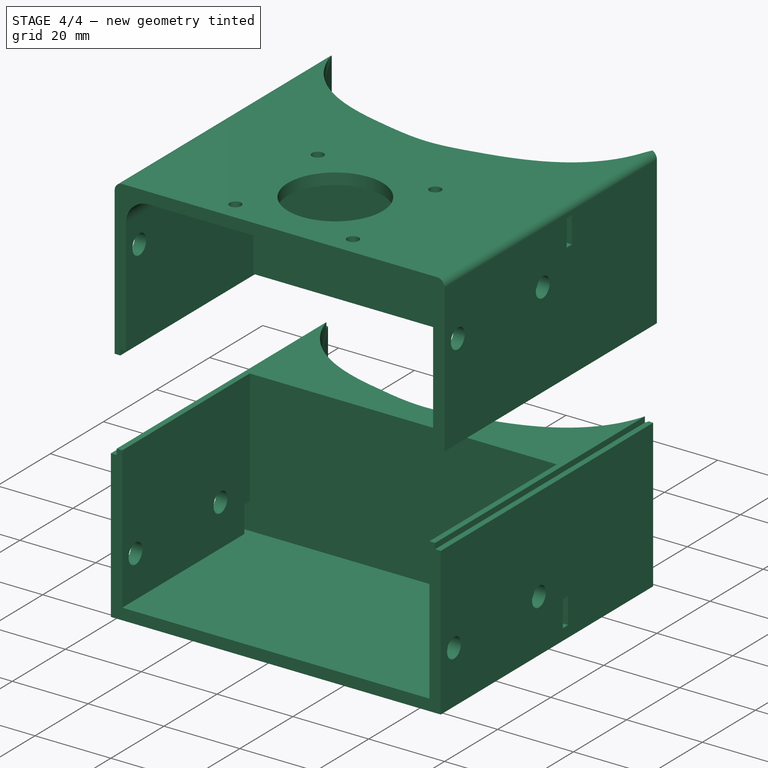
[diagram: stage 4 of 4 — iso view after this stage's code; geometry added in this stage tinted green]
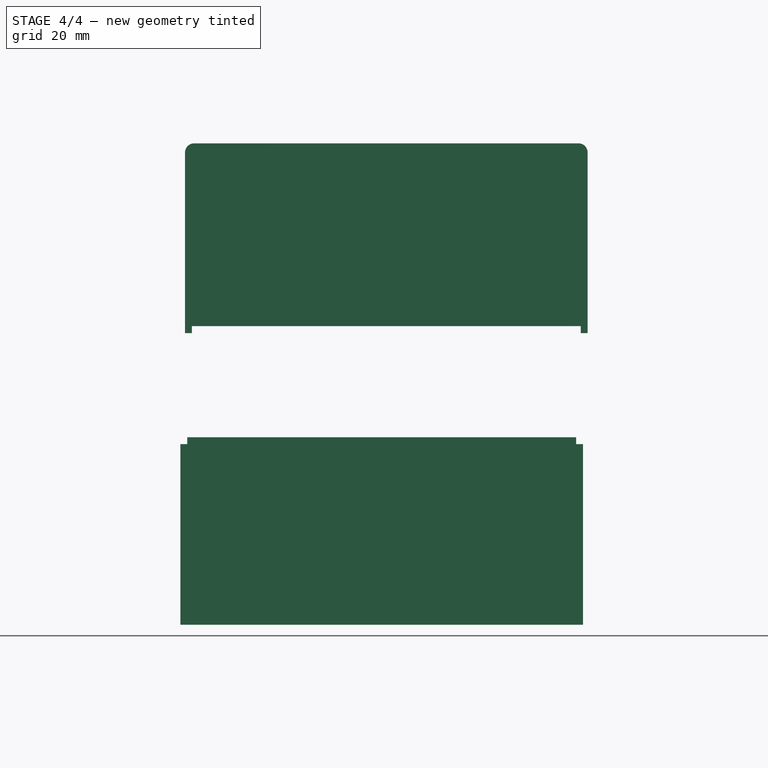
[diagram: stage 4 of 4 — front view after this stage's code; geometry added in this stage tinted green]
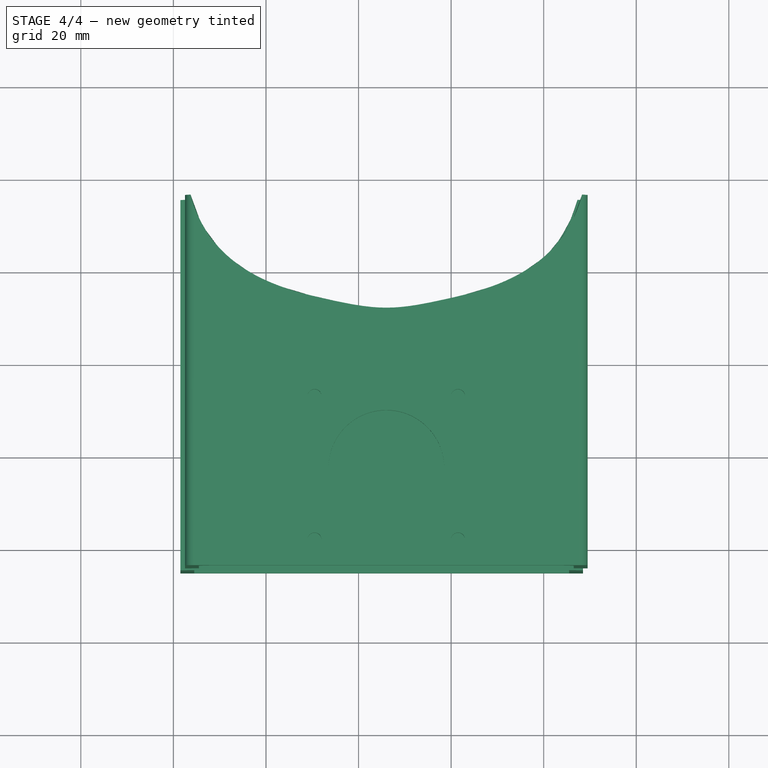
[diagram: stage 4 of 4 — top view after this stage's code; geometry added in this stage tinted green]
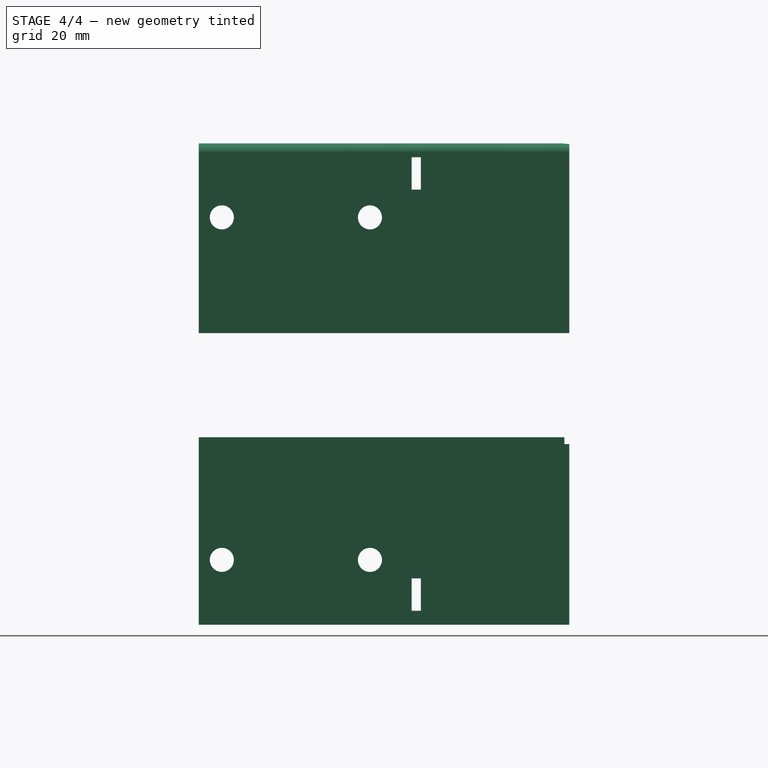
[diagram: stage 4 of 4 — right view after this stage's code; geometry added in this stage tinted green]
FEATURE [PartDesign::CoordinateSystem] MH1
  AttacherType = Attacher::AttachEngine3D
  MapMode = 11
  Placement = pos=(43.5,-40,64) rot=(0.707107,0,0.707107;3.14159rad)
  Support = -> [Pocket002]
FEATURE [PartDesign::CoordinateSystem] MH2
  AttacherType = Attacher::AttachEngine3D
  MapMode = 11
  Placement = pos=(43.5,-40,14) rot=(0.707107,0,0.707107;3.14159rad)
  Support = -> [Pocket002]
FEATURE [PartDesign::CoordinateSystem] MH3
  AttacherType = Attacher::AttachEngine3D
  MapMode = 11
  Placement = pos=(-43.5,-8,64) rot=(0.707107,0,0.707107;3.14159rad)
  Support = -> [Pocket002]
FEATURE [PartDesign::CoordinateSystem] MH4
  AttacherType = Attacher::AttachEngine3D
  MapMode = 11
  Placement = pos=(-43.5,-8,14) rot=(0.707107,0,0.707107;3.14159rad)
  Support = -> [Pocket002]
FEATURE [Sketcher::SketchObject] Sketch005
  ExternalGeometry = -> [Pocket]
  MapMode = 5
  Placement = pos=(-43.5,0,0) rot=(0.57735,-0.57735,-0.57735;2.0944rad)
  Support = -> [Pocket]
  sketch-geometry (8):
    g0: LineSegment StartX=-3 StartY=77 StartZ=0 EndX=-1 EndY=77 EndZ=0
    g1: LineSegment StartX=-1 StartY=77 StartZ=0 EndX=-1 EndY=70 EndZ=0
    g2: LineSegment StartX=-1 StartY=70 StartZ=0 EndX=-3 EndY=70 EndZ=0
    g3: LineSegment StartX=-3 StartY=70 StartZ=0 EndX=-3 EndY=77 EndZ=0
    g4: LineSegment StartX=-3 StartY=10 StartZ=0 EndX=-1 EndY=10 EndZ=0
    g5: LineSegment StartX=-1 StartY=10 StartZ=0 EndX=-1 EndY=3 EndZ=0
    g6: LineSegment StartX=-1 StartY=3 StartZ=0 EndX=-3 EndY=3 EndZ=0
    g7: LineSegment StartX=-3 StartY=3 StartZ=0 EndX=-3 EndY=10 EndZ=0
  constraints (22):
    c: Coincident(g0,g1)
    c: Coincident(g1,g2)
    c: Coincident(g2,g3)
    c: Coincident(g3,g0)
    c: Horizontal(g0)
    c: Horizontal(g2)
    c: Vertical(g1)
    c: Vertical(g3)
    c: Coincident(g4,g5)
    c: Coincident(g5,g6)
    c: Coincident(g6,g7)
    c: Coincident(g7,g4)
    c: Horizontal(g4)
    c: Horizontal(g6)
    c: Vertical(g5)
    c: Vertical(g7)
    c: Equal(g7,g3)
    c: Equal(g4,g2)
    c: Coincident(g0,g-4)
    c: Coincident(g6,g-5)
    c: DistanceX(g6,g6) = 2
    c: DistanceY(g5,g5) = 7
FEATURE [PartDesign::Pocket] Pocket003
  BaseFeature = -> Pocket002
  Length = 5
  Length2 = 100
  Profile = -> Sketch005
  Type = 1
FEATURE [App::Link] led_carrier
  LinkPlacement = pos=(-8.46386e-06,-8.00002,194) rot=(0,0,-1;1.5708rad)
  LinkedObject = -> <external led_carrier.FCStd>#Model
  Placement = pos=(-8.46386e-06,-8.00002,194) rot=(0,0,-1;1.5708rad)
FEATURE [App::Link] sk8  label="sk8_000"
  AssemblyType = Asm4EE
  AttachedBy = #MH
  AttachedTo = Parent Assembly#MH1
  LinkPlacement = pos=(43.5,-24,71) rot=(0.707107,0.707107,0;3.14159rad)
  LinkedObject = -> <external part/sk8.FCStd>#Model
  Placement = pos=(43.5,-24,71) rot=(0.707107,0.707107,0;3.14159rad)
  expr: Placement = MH1.Placement * AttachmentOffset * sk8#MH.Placement ^ -1
FEATURE [App::Link] sk9  label="sk8_001"
  AssemblyType = Asm4EE
  AttachedBy = #MH
  AttachedTo = Parent Assembly#MH2
  LinkPlacement = pos=(43.5,-24,21) rot=(0.707107,0.707107,0;3.14159rad)
  LinkedObject = -> <external part/sk8.FCStd>#Model
  Placement = pos=(43.5,-24,21) rot=(0.707107,0.707107,0;3.14159rad)
  expr: Placement = MH2.Placement * AttachmentOffset * sk8#MH.Placement ^ -1
FEATURE [App::Link] sk10  label="sk8_002"
  AssemblyType = Asm4EE
  AttachedBy = #MH
  AttachedTo = Parent Assembly#MH3
  AttachmentOffset = pos=(0,0,0) rot=(1,0,0;3.14159rad)
  LinkPlacement = pos=(-43.5,-24,71) rot=(-0.707107,0.707107,0;3.14159rad)
  LinkedObject = -> <external part/sk8.FCStd>#Model
  Placement = pos=(-43.5,-24,71) rot=(-0.707107,0.707107,0;3.14159rad)
  expr: Placement = MH3.Placement * AttachmentOffset * sk8#MH.Placement ^ -1
FEATURE [App::Link] sk8_2  label="sk8_003"
  AssemblyType = Asm4EE
  AttachedBy = #MH
  AttachedTo = Parent Assembly#MH4
  AttachmentOffset = pos=(0,0,0) rot=(1,0,0;3.14159rad)
  LinkPlacement = pos=(-43.5,-24,21) rot=(-0.707107,0.707107,0;3.14159rad)
  LinkedObject = -> <external part/sk8.FCStd>#Model
  Placement = pos=(-43.5,-24,21) rot=(-0.707107,0.707107,0;3.14159rad)
  expr: Placement = MH4.Placement * AttachmentOffset * sk8#MH.Placement ^ -1
FEATURE [App::Link] _00mm_Rail
  AssemblyType = Asm4EE
  AttachedBy = #Center
  AttachedTo = sk9#Rail
  AttachmentOffset = pos=(0,0,-32) rot=(1,0,0;3.14159rad)
  LinkPlacement = pos=(63.5,-24,53) rot=(0,0,-1;3.14159rad)
  LinkedObject = -> <external part/500mm_Rail.FCStd>#Model
  Placement = pos=(63.5,-24,53) rot=(0,0,-1;3.14159rad)
  expr: Placement = sk9.Placement * sk8#Rail.Placement * AttachmentOffset * _00mm_Rail#Center.Placement ^ -1
FEATURE [App::Link] _00mm_Rail001
  AssemblyType = Asm4EE
  AttachedBy = #Center
  AttachedTo = sk8_2#Rail
  AttachmentOffset = pos=(0,0,-32) rot=(-1,0,0;3.14159rad)
  LinkPlacement = pos=(-63.5,-24,53) rot=(0,0,1;0rad)
  LinkedObject = -> <external part/500mm_Rail.FCStd>#Model
  Placement = pos=(-63.5,-24,53) rot=(0,0,1;0rad)
  expr: Placement = sk8_2.Placement * sk8#Rail.Placement * AttachmentOffset * _00mm_Rail#Center.Placement ^ -1
FEATURE [App::Link] D19L25
  AssemblyType = Asm4EE
  AttachedBy = #Center
  AttachedTo = Nema17#LCS_1
  AttachmentOffset = pos=(0,0,15) rot=(0,0,1;0rad)
  LinkPlacement = pos=(-1.38366,-24.8648,92) rot=(0,0,1;3.14159rad)
  LinkedObject = -> <external part/D19L25.FCStd>#Model
  Placement = pos=(-1.38366,-24.8648,92) rot=(0,0,1;3.14159rad)
  expr: Placement = Nema17.Placement * Nema17#LCS_1.Placement * AttachmentOffset * D19L25#Center.Placement ^ -1
FEATURE [App::Link] _00mm_Rail002
  AssemblyType = Asm4EE
  AttachedBy = #Center
  AttachedTo = D19L25#Center
  AttachmentOffset = pos=(0,0,65) rot=(0,0,1;0rad)
  LinkPlacement = pos=(0,-24,157) rot=(0,0,1;1.5708rad)
  LinkedObject = -> <external part/500mm_Rail.FCStd>#Model
  Placement = pos=(0,-24,157) rot=(0,0,1;1.5708rad)
  expr: Placement = D19L25.Placement * D19L25#Center.Placement * AttachmentOffset * _00mm_Rail#Center.Placement ^ -1
FEATURE [PartDesign::CoordinateSystem] Motor_Face
  AttacherType = Attacher::AttachEngine3D
  MapMode = 11
  Placement = pos=(0,-24,77) rot=(0,0,1;1.5708rad)
  Support = -> [Pocket003]
FEATURE [Sketcher::SketchObject] Sketch006  label="Slice"
  ExternalGeometry = -> [Pocket003]
  MapMode = 5
  Placement = pos=(0,-45,0) rot=(1,0,0;1.5708rad)
  Support = -> [Pocket003]
  sketch-geometry (12):
    g0: LineSegment [constr] StartX=-43.5 StartY=39 StartZ=0 EndX=-43.5 EndY=78 EndZ=0
    g1: LineSegment [constr] StartX=43.5 StartY=39 StartZ=0 EndX=43.5 EndY=78 EndZ=0
    g2: LineSegment StartX=-43.5 StartY=39 StartZ=0 EndX=-42 EndY=39 EndZ=0
    g3: LineSegment StartX=-42 StartY=39 StartZ=0 EndX=-42 EndY=40.5 EndZ=0
    g4: LineSegment StartX=-42 StartY=40.5 StartZ=0 EndX=-40.5 EndY=40.5 EndZ=0
    g5: LineSegment [constr] StartX=-43.5 StartY=39 StartZ=0 EndX=-43.5 EndY=0 EndZ=0
    g6: LineSegment StartX=-40.5 StartY=40.5 StartZ=0 EndX=40.5 EndY=40.5 EndZ=0
    g7: LineSegment StartX=40.5 StartY=40.5 StartZ=0 EndX=42 EndY=40.5 EndZ=0
    g8: LineSegment StartX=42 StartY=40.5 StartZ=0 EndX=42 EndY=39 EndZ=0
    g9: LineSegment StartX=42 StartY=39 StartZ=0 EndX=43.5 EndY=39 EndZ=0
    g10: LineSegment StartX=-43.5 StartY=39 StartZ=0 EndX=-48.5 EndY=39 EndZ=0
    g11: LineSegment StartX=43.5 StartY=39 StartZ=0 EndX=48.5 EndY=39 EndZ=0
  constraints (34):
    c: PointOnObject(g0,g-4)
    c: PointOnObject(g1,g-3)
    c: Coincident(g0,g-4)
    c: Coincident(g1,g-3)
    c: Equal(g0,g1)
    c: Coincident(g2,g0)
    c: Horizontal(g2)
    c: Coincident(g3,g2)
    c: Vertical(g3)
    c: Coincident(g4,g3)
    c: PointOnObject(g4,g-5)
    c: Horizontal(g4)
    c: Equal(g4,g3)
    c: Equal(g3,g2)
    c: Coincident(g5,g2)
    c: Coincident(g5,g-4)
    c: Equal(g5,g0)
    c: Coincident(g6,g4)
    c: PointOnObject(g6,g-6)
    c: Horizontal(g6)
    c: Coincident(g7,g6)
    c: Horizontal(g7)
    c: Coincident(g8,g7)
    c: Vertical(g8)
    c: Coincident(g9,g8)
    c: Coincident(g9,g1)
    c: Equal(g8,g7)
    c: Equal(g7,g9)
    c: Coincident(g10,g2)
    c: Horizontal(g10)
    c: DistanceX(g10,g10) = 5
    c: Coincident(g11,g9)
    c: Horizontal(g11)
    c: DistanceX(g11,g11) = 5
FEATURE [PartDesign::Body] Body
  Group = -> [Sketch001,Pad,Chamfer,Chamfer001,Sketch,Pocket,Fillet,Fillet001,Fillet002,Fillet003,Sketch002,Pocket001,Sketch004,Pocket002,Sketch005,Pocket003,Sketch006]
  Origin = -> Origin001
  Tip = -> Pocket003
FEATURE [Part::Extrusion] Extrude
  Base = -> Sketch006
  Dir = (0,-1,2e-16)
  DirMode = 2
  FaceMakerClass = Part::FaceMakerBullseye
  LengthFwd = -100
  LengthRev = 0
  Placement = pos=(0,-10,0) rot=(0,0,1;0rad)
  Solid = false
  Symmetric = false
FEATURE [Part::FeaturePython] Slice001  # WARN: FeaturePython — macro-defined, semantics opaque (R4)
  Base = -> Body
  Mode = 1
  Tolerance = 0
  Tools = -> [Extrude]
FEATURE [Part::FeaturePython] Slice001_child0  label="Slice001.0"  # WARN: FeaturePython — macro-defined, semantics opaque (R4)
  Base = -> Slice001
  FilterType = 1
  Invert = false
  OverrideMaxVal = 0
  Placement = pos=(-154,0,24) rot=(0,0,1;0rad)
  WindowFrom = 80
  WindowTo = 100
  items = 0
FEATURE [Part::FeaturePython] Slice001_child1  label="Slice001.1"  # WARN: FeaturePython — macro-defined, semantics opaque (R4)
  Base = -> Slice001
  FilterType = 1
  Invert = false
  OverrideMaxVal = 0
  Placement = pos=(-155,0,0) rot=(0,0,1;0rad)
  WindowFrom = 80
  WindowTo = 100
  items = 1
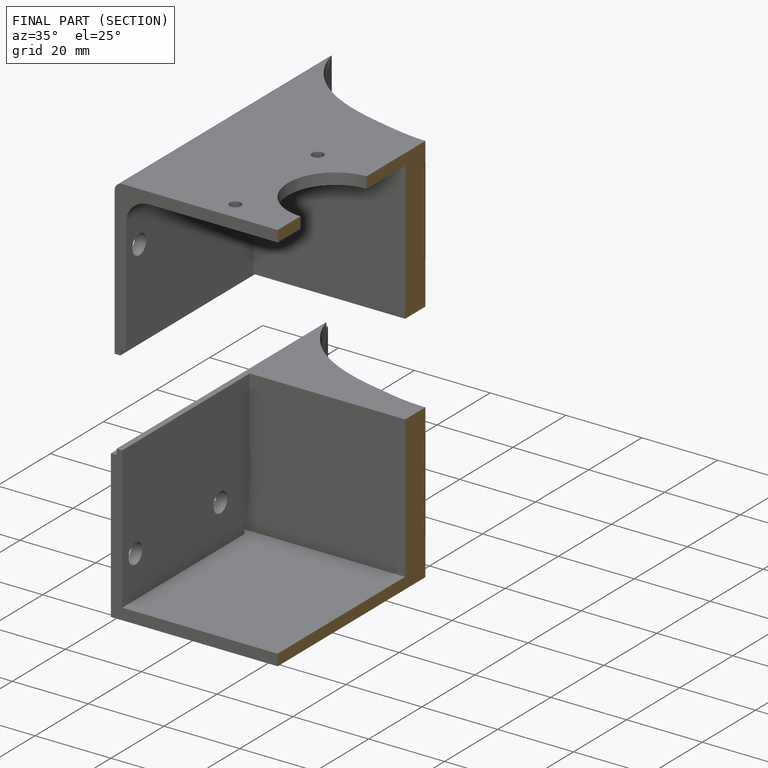
[diagram: finished part — half-section view (interior)]
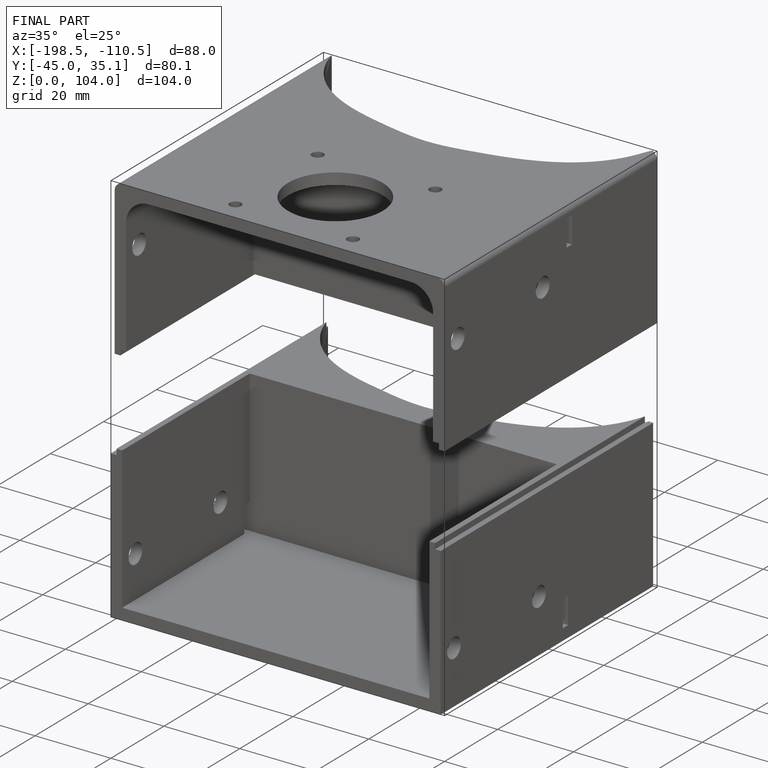
[diagram: finished part — iso view with bounding-box wireframe]
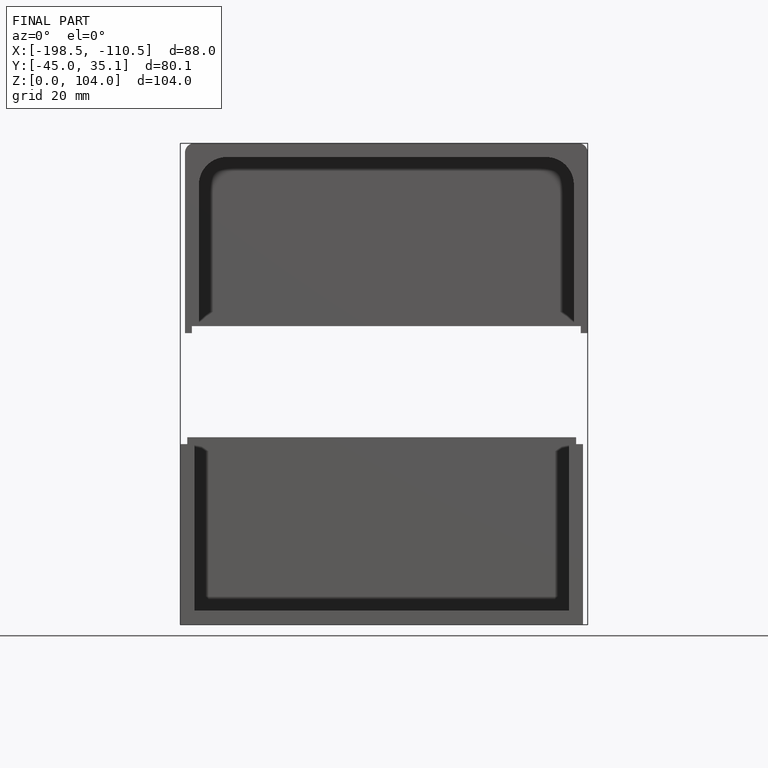
[diagram: finished part — front view with bounding-box wireframe]
